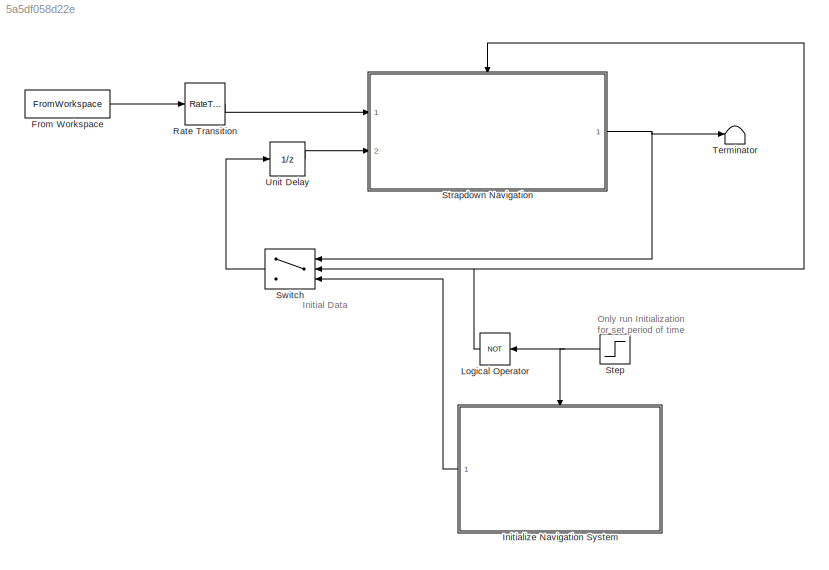
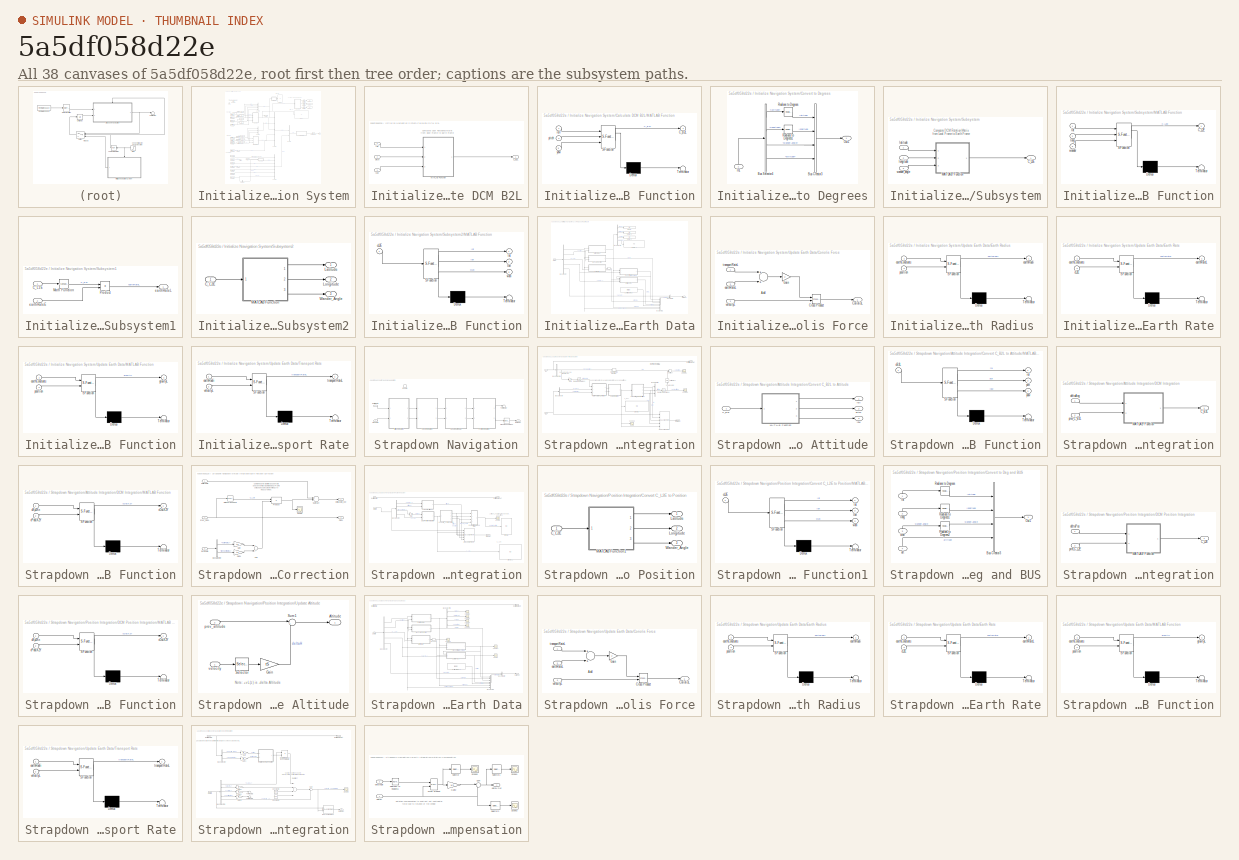
[diagram: thumbnail index - all 38 canvases of the model, root first then tree order]
MODEL slx_5a5df058d22e
KIND model
CONFIG AbsTol = auto
CONFIG FixedStep = auto
CONFIG InitFcn = InitNav;\ndtSensor = inertialData_ts.angular_rate.Time(2)-inertialData_ts.angular_rate.Time(1);\n
CONFIG MaxStep = auto
CONFIG MinStep = auto
CONFIG PreLoadFcn = load INSdata.mat\n\n
CONFIG RelTol = 1e-3
CONFIG SampleTimeConstraint = Unconstrained
CONFIG Solver = FixedStepDiscrete
CONFIG SolverMode = Auto
CONFIG SolverName = FixedStepDiscrete
CONFIG StartTime = 0.0
CONFIG StopTime = 100
BLOCK [FromWorkspace] From Workspace
  OutDataTypeStr = Bus: BInertialData
  OutputAfterFinalValue = Holding final value
  SampleTime = 0
  VariableName = inertialData_ts
  ZeroCross = on
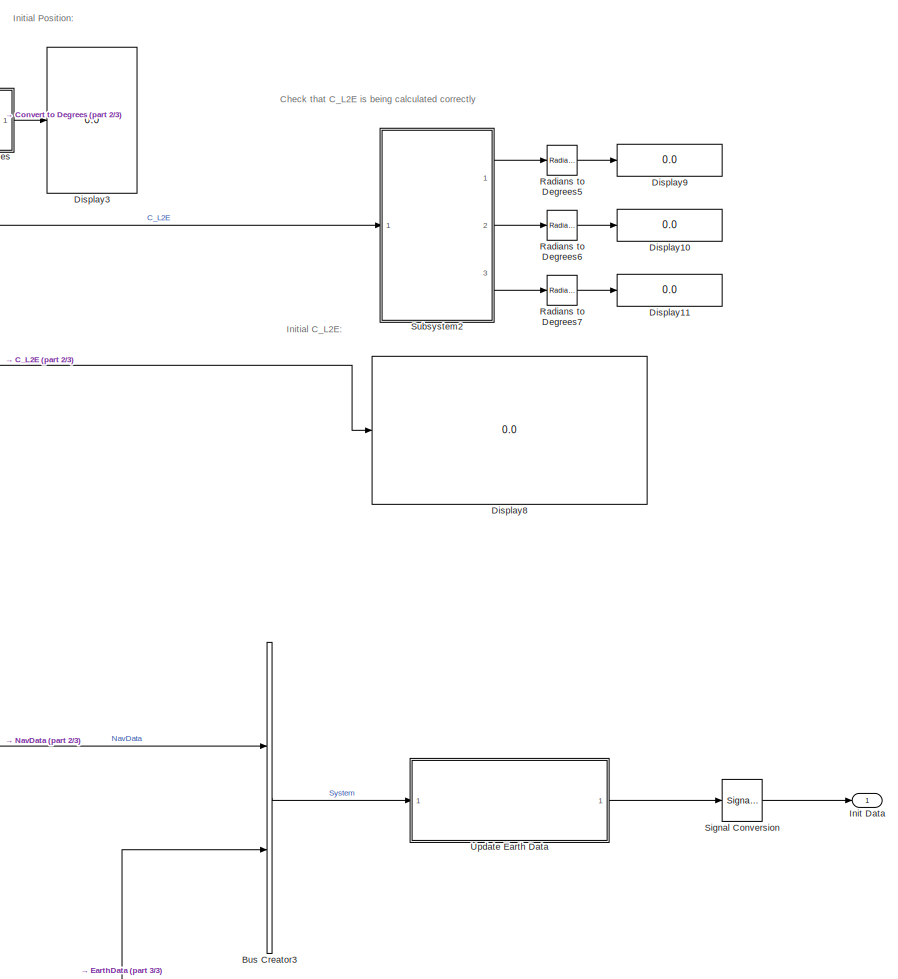
[diagram: Initialize Navigation System - part 1/3, top right region]
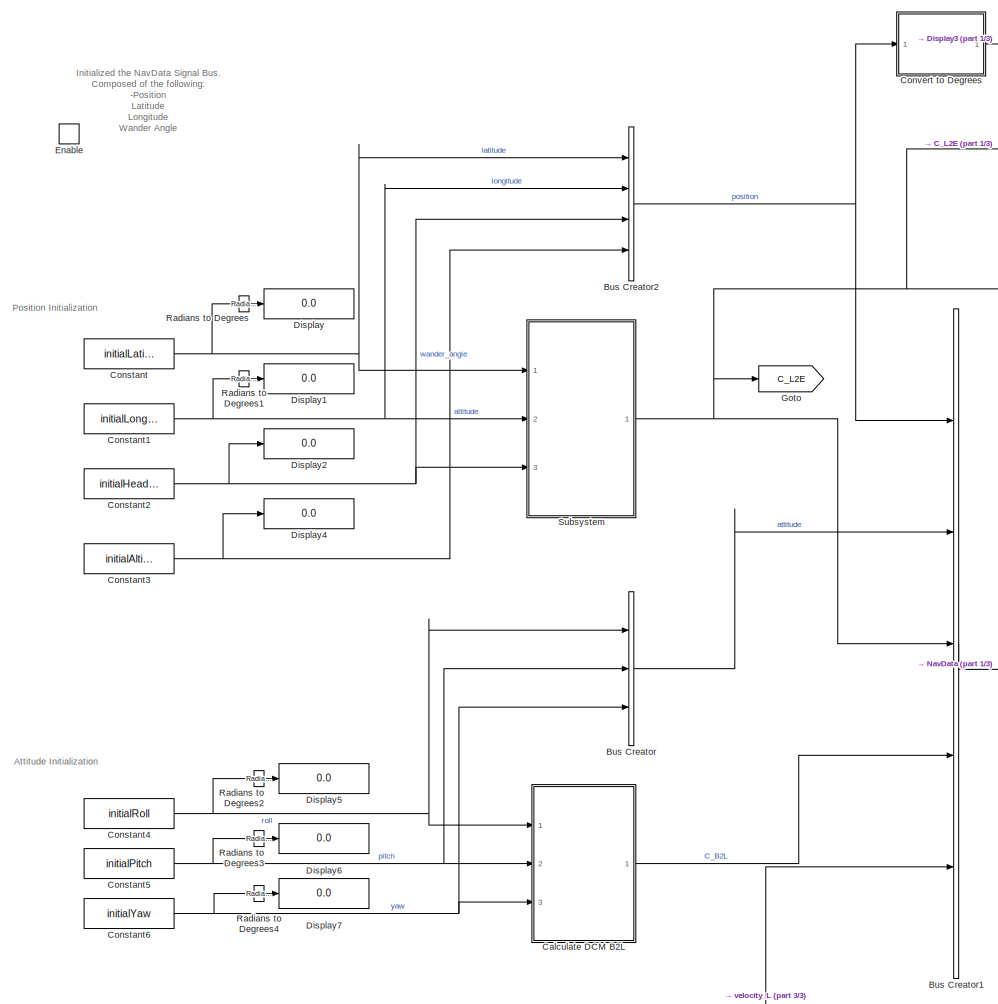
[diagram: Initialize Navigation System - part 2/3, middle left region]
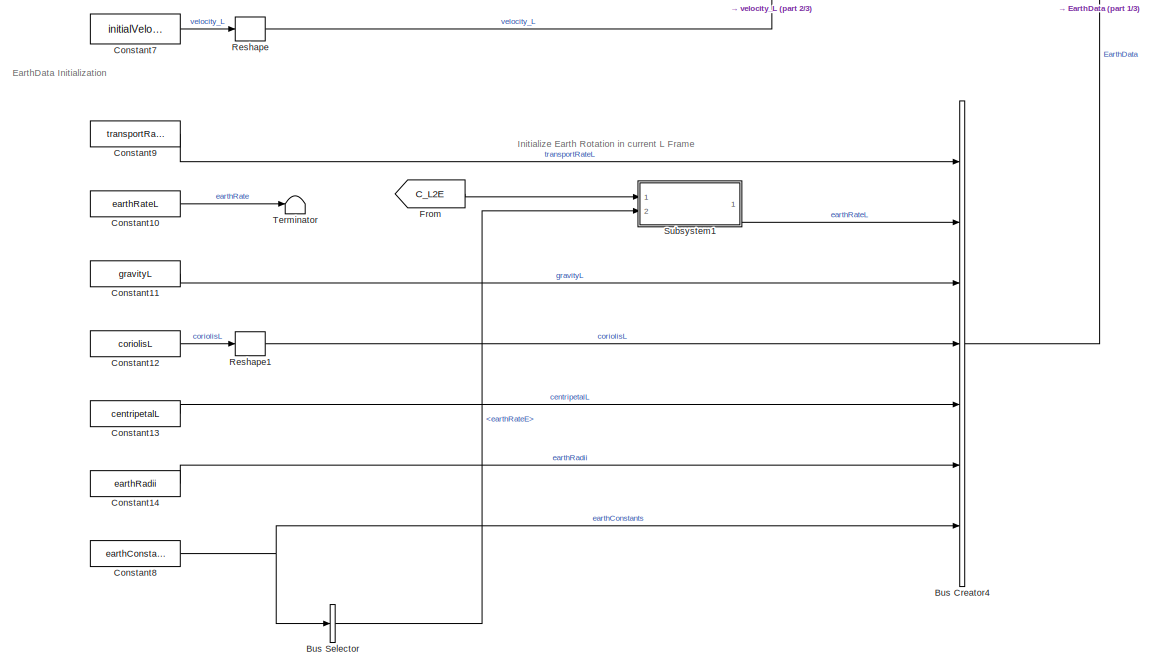
[diagram: Initialize Navigation System - part 3/3, bottom left region]
BLOCK [SubSystem] Initialize Navigation System
  Ports = [0, 1, 1]
  RequestExecContextInheritance = off
  TreatAsAtomicUnit = on
BLOCK [BusCreator] Initialize Navigation System/Bus Creator
  DisplayOption = bar
  Inputs = 3
  OutDataTypeStr = Bus: BAttitude
  Ports = [3, 1]
BLOCK [BusCreator] Initialize Navigation System/Bus Creator1
  DisplayOption = bar
  Inputs = 'position','attitude','C_L2E','C_B2L','velocity_L'
  OutDataTypeStr = Bus: BNavData
  Ports = [5, 1]
BLOCK [BusCreator] Initialize Navigation System/Bus Creator2
  DisplayOption = bar
  OutDataTypeStr = Bus: BPosition
  Ports = [4, 1]
BLOCK [BusCreator] Initialize Navigation System/Bus Creator3
  DisplayOption = bar
  Inputs = 'NavData','EarthData'
  Ports = [2, 1]
BLOCK [BusCreator] Initialize Navigation System/Bus Creator4
  DisplayOption = bar
  Inputs = 7
  Ports = [7, 1]
BLOCK [BusSelector] Initialize Navigation System/Bus Selector
  OutputSignals = earthRateE
  Ports = [1, 1]
BLOCK [SubSystem] Initialize Navigation System/Calculate DCM B2L
  Ports = [3, 1]
  RequestExecContextInheritance = off
BLOCK [Outport] Initialize Navigation System/Calculate DCM B2L/C_B2L
  IconDisplay = Port number
BLOCK [SubSystem] Initialize Navigation System/Calculate DCM B2L/MATLAB Function
  ErrorFcn = Stateflow.Translate.translate
  PermitHierarchicalResolution = ExplicitOnly
  Ports = [3, 1]
  RequestExecContextInheritance = off
  SFBlockType = MATLAB Function
  TreatAsAtomicUnit = on
BLOCK [Demux] Initialize Navigation System/Calculate DCM B2L/MATLAB Function/ Demux 
  Outputs = 1
  Ports = [1, 1]
BLOCK [S-Function] Initialize Navigation System/Calculate DCM B2L/MATLAB Function/ SFunction 
  FunctionName = sf_sfun
  PortCounts = [3 2]
  Ports = [3, 2]
  Tag = Stateflow S-Function basicINS 2
BLOCK [Terminator] Initialize Navigation System/Calculate DCM B2L/MATLAB Function/ Terminator 
BLOCK [Outport] Initialize Navigation System/Calculate DCM B2L/MATLAB Function/C_B2L
  IconDisplay = Port number
BLOCK [Inport] Initialize Navigation System/Calculate DCM B2L/MATLAB Function/pitch
  IconDisplay = Port number
  Port = 2
BLOCK [Inport] Initialize Navigation System/Calculate DCM B2L/MATLAB Function/roll
  IconDisplay = Port number
BLOCK [Inport] Initialize Navigation System/Calculate DCM B2L/MATLAB Function/yaw
  IconDisplay = Port number
  Port = 3
BLOCK [Inport] Initialize Navigation System/Calculate DCM B2L/pitch
  IconDisplay = Port number
  Port = 2
BLOCK [Inport] Initialize Navigation System/Calculate DCM B2L/roll
  IconDisplay = Port number
BLOCK [Inport] Initialize Navigation System/Calculate DCM B2L/yaw
  IconDisplay = Port number
  Port = 3
BLOCK [Constant] Initialize Navigation System/Constant
  Value = initialLatitude
BLOCK [Constant] Initialize Navigation System/Constant1
  Value = initialLongitude
BLOCK [Constant] Initialize Navigation System/Constant10
  Value = earthRateL
BLOCK [Constant] Initialize Navigation System/Constant11
  Value = gravityL
BLOCK [Constant] Initialize Navigation System/Constant12
  Value = coriolisL
BLOCK [Constant] Initialize Navigation System/Constant13
  Value = centripetalL
BLOCK [Constant] Initialize Navigation System/Constant14
  OutDataTypeStr = Bus: BEarthRadii
  Value = earthRadii
BLOCK [Constant] Initialize Navigation System/Constant2
  Value = initialHeading
BLOCK [Constant] Initialize Navigation System/Constant3
  Value = initialAltitude
BLOCK [Constant] Initialize Navigation System/Constant4
  Value = initialRoll
BLOCK [Constant] Initialize Navigation System/Constant5
  Value = initialPitch
BLOCK [Constant] Initialize Navigation System/Constant6
  Value = initialYaw
BLOCK [Constant] Initialize Navigation System/Constant7
  Value = initialVelocityL
BLOCK [Constant] Initialize Navigation System/Constant8
  OutDataTypeStr = Bus: BEarthConstants
  Value = earthConstants
BLOCK [Constant] Initialize Navigation System/Constant9
  Value = transportRateL
BLOCK [SubSystem] Initialize Navigation System/Convert to Degrees
  Ports = [1, 1]
  RequestExecContextInheritance = off
BLOCK [BusCreator] Initialize Navigation System/Convert to Degrees/Bus Creator3
  DisplayOption = bar
  OutDataTypeStr = Bus: BPosition
  Ports = [4, 1]
BLOCK [BusSelector] Initialize Navigation System/Convert to Degrees/Bus Selector4
  OutputSignals = latitude,longitude,wander_angle,altitude
  Ports = [1, 4]
BLOCK [Inport] Initialize Navigation System/Convert to Degrees/In1
  IconDisplay = Port number
BLOCK [Outport] Initialize Navigation System/Convert to Degrees/Out1
  IconDisplay = Port number
BLOCK [Reference] Initialize Navigation System/Convert to Degrees/Radians to Degrees  REF=simulink_extras/Transformations/Radians
to Degrees
  Ports = [1, 1]
  SourceBlock = simulink_extras/Transformations/Radians\nto Degrees
  SourceType = RadiansToDegrees
BLOCK [Reference] Initialize Navigation System/Convert to Degrees/Radians to Degrees1  REF=simulink_extras/Transformations/Radians
to Degrees
  Ports = [1, 1]
  SourceBlock = simulink_extras/Transformations/Radians\nto Degrees
  SourceType = RadiansToDegrees
BLOCK [Display] Initialize Navigation System/Display
  Decimation = 1
  Ports = [1]
BLOCK [Display] Initialize Navigation System/Display1
  Decimation = 1
  Ports = [1]
BLOCK [Display] Initialize Navigation System/Display10
  Decimation = 1
  Ports = [1]
BLOCK [Display] Initialize Navigation System/Display11
  Decimation = 1
  Ports = [1]
BLOCK [Display] Initialize Navigation System/Display2
  Decimation = 1
  Ports = [1]
BLOCK [Display] Initialize Navigation System/Display3
  Decimation = 1
  Ports = [1]
BLOCK [Display] Initialize Navigation System/Display4
  Decimation = 1
  Ports = [1]
BLOCK [Display] Initialize Navigation System/Display5
  Decimation = 1
  Ports = [1]
BLOCK [Display] Initialize Navigation System/Display6
  Decimation = 1
  Ports = [1]
BLOCK [Display] Initialize Navigation System/Display7
  Decimation = 1
  Ports = [1]
BLOCK [Display] Initialize Navigation System/Display8
  Decimation = 1
  Ports = [1]
BLOCK [Display] Initialize Navigation System/Display9
  Decimation = 1
  Ports = [1]
BLOCK [EnablePort] Initialize Navigation System/Enable
  Ports = []
BLOCK [From] Initialize Navigation System/From
  GotoTag = C_L2E
BLOCK [Goto] Initialize Navigation System/Goto
  GotoTag = C_L2E
BLOCK [Outport] Initialize Navigation System/Init Data
  IconDisplay = Port number
  OutDataTypeStr = Bus: BSystem
BLOCK [Reference] Initialize Navigation System/Radians to Degrees  REF=simulink_extras/Transformations/Radians
to Degrees
  Ports = [1, 1]
  SourceBlock = simulink_extras/Transformations/Radians\nto Degrees
  SourceType = RadiansToDegrees
BLOCK [Reference] Initialize Navigation System/Radians to Degrees1  REF=simulink_extras/Transformations/Radians
to Degrees
  Ports = [1, 1]
  SourceBlock = simulink_extras/Transformations/Radians\nto Degrees
  SourceType = RadiansToDegrees
BLOCK [Reference] Initialize Navigation System/Radians to Degrees2  REF=simulink_extras/Transformations/Radians
to Degrees
  Ports = [1, 1]
  SourceBlock = simulink_extras/Transformations/Radians\nto Degrees
  SourceType = RadiansToDegrees
BLOCK [Reference] Initialize Navigation System/Radians to Degrees3  REF=simulink_extras/Transformations/Radians
to Degrees
  Ports = [1, 1]
  SourceBlock = simulink_extras/Transformations/Radians\nto Degrees
  SourceType = RadiansToDegrees
BLOCK [Reference] Initialize Navigation System/Radians to Degrees4  REF=simulink_extras/Transformations/Radians
to Degrees
  Ports = [1, 1]
  SourceBlock = simulink_extras/Transformations/Radians\nto Degrees
  SourceType = RadiansToDegrees
BLOCK [Reference] Initialize Navigation System/Radians to Degrees5  REF=simulink_extras/Transformations/Radians
to Degrees
  Ports = [1, 1]
  SourceBlock = simulink_extras/Transformations/Radians\nto Degrees
  SourceType = RadiansToDegrees
BLOCK [Reference] Initialize Navigation System/Radians to Degrees6  REF=simulink_extras/Transformations/Radians
to Degrees
  Ports = [1, 1]
  SourceBlock = simulink_extras/Transformations/Radians\nto Degrees
  SourceType = RadiansToDegrees
BLOCK [Reference] Initialize Navigation System/Radians to Degrees7  REF=simulink_extras/Transformations/Radians
to Degrees
  Ports = [1, 1]
  SourceBlock = simulink_extras/Transformations/Radians\nto Degrees
  SourceType = RadiansToDegrees
BLOCK [Reshape] Initialize Navigation System/Reshape
  OutputDimensionality = Column vector (2-D)
  Ports = [1, 1]
BLOCK [Reshape] Initialize Navigation System/Reshape1
  OutputDimensionality = Column vector (2-D)
  Ports = [1, 1]
BLOCK [SignalConversion] Initialize Navigation System/Signal Conversion
BLOCK [SubSystem] Initialize Navigation System/Subsystem
  Ports = [3, 1]
  RequestExecContextInheritance = off
BLOCK [Outport] Initialize Navigation System/Subsystem/C_L2E
  IconDisplay = Port number
BLOCK [SubSystem] Initialize Navigation System/Subsystem/MATLAB Function
  ErrorFcn = Stateflow.Translate.translate
  PermitHierarchicalResolution = ExplicitOnly
  Ports = [3, 1]
  RequestExecContextInheritance = off
  SFBlockType = MATLAB Function
  TreatAsAtomicUnit = on
BLOCK [Demux] Initialize Navigation System/Subsystem/MATLAB Function/ Demux 
  Outputs = 1
  Ports = [1, 1]
BLOCK [S-Function] Initialize Navigation System/Subsystem/MATLAB Function/ SFunction 
  FunctionName = sf_sfun
  PortCounts = [3 2]
  Ports = [3, 2]
  Tag = Stateflow S-Function basicINS 1
BLOCK [Terminator] Initialize Navigation System/Subsystem/MATLAB Function/ Terminator 
BLOCK [Outport] Initialize Navigation System/Subsystem/MATLAB Function/C_L2E
  IconDisplay = Port number
BLOCK [Inport] Initialize Navigation System/Subsystem/MATLAB Function/lat
  IconDisplay = Port number
BLOCK [Inport] Initialize Navigation System/Subsystem/MATLAB Function/long
  IconDisplay = Port number
  Port = 2
BLOCK [Inport] Initialize Navigation System/Subsystem/MATLAB Function/wander
  IconDisplay = Port number
  Port = 3
BLOCK [Inport] Initialize Navigation System/Subsystem/latitude
  IconDisplay = Port number
BLOCK [Inport] Initialize Navigation System/Subsystem/longitude
  IconDisplay = Port number
  Port = 2
BLOCK [Inport] Initialize Navigation System/Subsystem/wander_angle
  IconDisplay = Port number
  Port = 3
BLOCK [SubSystem] Initialize Navigation System/Subsystem1
  Ports = [2, 1]
  RequestExecContextInheritance = off
BLOCK [Inport] Initialize Navigation System/Subsystem1/C_L2E
  IconDisplay = Port number
BLOCK [Math] Initialize Navigation System/Subsystem1/Math Function
  Operator = transpose
  Ports = [1, 1]
BLOCK [Product] Initialize Navigation System/Subsystem1/Product
  InputSameDT = off
  Multiplication = Matrix(*)
  OutDataTypeStr = Inherit: Inherit via internal rule
  Ports = [2, 1]
  RndMeth = Floor
  SaturateOnIntegerOverflow = off
BLOCK [Inport] Initialize Navigation System/Subsystem1/earthRateE
  IconDisplay = Port number
  Port = 2
BLOCK [Outport] Initialize Navigation System/Subsystem1/earthRateL
  IconDisplay = Port number
BLOCK [SubSystem] Initialize Navigation System/Subsystem2
  Ports = [1, 3]
  RequestExecContextInheritance = off
BLOCK [Inport] Initialize Navigation System/Subsystem2/C_L2E
  IconDisplay = Port number
BLOCK [Outport] Initialize Navigation System/Subsystem2/Latitude
  IconDisplay = Port number
BLOCK [Outport] Initialize Navigation System/Subsystem2/Longitude
  IconDisplay = Port number
  Port = 2
BLOCK [SubSystem] Initialize Navigation System/Subsystem2/MATLAB Function
  ErrorFcn = Stateflow.Translate.translate
  PermitHierarchicalResolution = ExplicitOnly
  Ports = [1, 3]
  RequestExecContextInheritance = off
  SFBlockType = MATLAB Function
  TreatAsAtomicUnit = on
BLOCK [Demux] Initialize Navigation System/Subsystem2/MATLAB Function/ Demux 
  Outputs = 1
  Ports = [1, 1]
BLOCK [S-Function] Initialize Navigation System/Subsystem2/MATLAB Function/ SFunction 
  FunctionName = sf_sfun
  PortCounts = [1 4]
  Ports = [1, 4]
  Tag = Stateflow S-Function basicINS 15
BLOCK [Terminator] Initialize Navigation System/Subsystem2/MATLAB Function/ Terminator 
BLOCK [Inport] Initialize Navigation System/Subsystem2/MATLAB Function/cL2E
  IconDisplay = Port number
BLOCK [Outport] Initialize Navigation System/Subsystem2/MATLAB Function/lat
  IconDisplay = Port number
BLOCK [Outport] Initialize Navigation System/Subsystem2/MATLAB Function/lon
  IconDisplay = Port number
  Port = 2
BLOCK [Outport] Initialize Navigation System/Subsystem2/MATLAB Function/wan
  IconDisplay = Port number
  Port = 3
BLOCK [Outport] Initialize Navigation System/Subsystem2/Wander_Angle
  IconDisplay = Port number
  Port = 3
BLOCK [Terminator] Initialize Navigation System/Terminator
BLOCK [SubSystem] Initialize Navigation System/Update Earth Data
  Ports = [1, 1]
  RequestExecContextInheritance = off
BLOCK [BusCreator] Initialize Navigation System/Update Earth Data/Bus Creator1
  DisplayOption = bar
  Inputs = 7
  OutDataTypeStr = Bus: BEarthData
  Ports = [7, 1]
BLOCK [BusCreator] Initialize Navigation System/Update Earth Data/Bus Creator2
  DisplayOption = bar
  Inputs = 2
  OutDataTypeStr = Bus: BSystem
  Ports = [2, 1]
BLOCK [BusSelector] Initialize Navigation System/Update Earth Data/Bus Selector
  OutputSignals = EarthData.earthConstants,NavData.position,NavData.C_L2E,NavData.velocity_L,NavData
  Ports = [1, 5]
BLOCK [BusSelector] Initialize Navigation System/Update Earth Data/Bus Selector1
  OutputSignals = radius,meridional,normal,curvatureL
  Ports = [1, 4]
BLOCK [Constant] Initialize Navigation System/Update Earth Data/Centripetal Froce
  Value = [0;0;0]
BLOCK [SubSystem] Initialize Navigation System/Update Earth Data/Coriolis Force
  Ports = [3, 1]
  RequestExecContextInheritance = off
BLOCK [Sum] Initialize Navigation System/Update Earth Data/Coriolis Force/Add
  InputSameDT = off
  OutDataTypeStr = Inherit: Inherit via internal rule
  Ports = [2, 1]
  SaturateOnIntegerOverflow = off
BLOCK [Outport] Initialize Navigation System/Update Earth Data/Coriolis Force/CoriolisL
  IconDisplay = Port number
BLOCK [Reference] Initialize Navigation System/Update Earth Data/Coriolis Force/Cross Product  REF=vrlib/Utilities/Cross Product
  Ports = [2, 1]
  SourceBlock = vrlib/Utilities/Cross Product
  SourceType = Cross Product
BLOCK [Gain] Initialize Navigation System/Update Earth Data/Coriolis Force/Gain
  Gain = 2
  OutDataTypeStr = Inherit: Inherit via internal rule
  ParamDataTypeStr = Inherit: Inherit via internal rule
  SaturateOnIntegerOverflow = off
BLOCK [Inport] Initialize Navigation System/Update Earth Data/Coriolis Force/earthRateL
  IconDisplay = Port number
  Port = 2
BLOCK [Inport] Initialize Navigation System/Update Earth Data/Coriolis Force/transportRateL
  IconDisplay = Port number
BLOCK [Inport] Initialize Navigation System/Update Earth Data/Coriolis Force/velocityL
  IconDisplay = Port number
  Port = 3
BLOCK [Inport] Initialize Navigation System/Update Earth Data/Data In
  IconDisplay = Port number
BLOCK [Outport] Initialize Navigation System/Update Earth Data/Data Out
  IconDisplay = Port number
  OutDataTypeStr = Bus: BSystem
BLOCK [Display] Initialize Navigation System/Update Earth Data/Display
  Decimation = 1
  Ports = [1]
BLOCK [Display] Initialize Navigation System/Update Earth Data/Display1
  Decimation = 1
  Ports = [1]
BLOCK [Display] Initialize Navigation System/Update Earth Data/Display2
  Decimation = 1
  Ports = [1]
BLOCK [Display] Initialize Navigation System/Update Earth Data/Display3
  Decimation = 1
  Ports = [1]
BLOCK [SubSystem] Initialize Navigation System/Update Earth Data/Earth Radius 
  ErrorFcn = Stateflow.Translate.translate
  PermitHierarchicalResolution = ExplicitOnly
  Ports = [2, 1]
  RequestExecContextInheritance = off
  SFBlockType = MATLAB Function
  TreatAsAtomicUnit = on
BLOCK [Demux] Initialize Navigation System/Update Earth Data/Earth Radius / Demux 
  Outputs = 1
  Ports = [1, 1]
BLOCK [S-Function] Initialize Navigation System/Update Earth Data/Earth Radius / SFunction 
  FunctionName = sf_sfun
  PortCounts = [2 2]
  Ports = [2, 2]
  Tag = Stateflow S-Function basicINS 7
BLOCK [Terminator] Initialize Navigation System/Update Earth Data/Earth Radius / Terminator 
BLOCK [Inport] Initialize Navigation System/Update Earth Data/Earth Radius /earthConstants
  IconDisplay = Port number
BLOCK [Outport] Initialize Navigation System/Update Earth Data/Earth Radius /earthRadii
  IconDisplay = Port number
BLOCK [Inport] Initialize Navigation System/Update Earth Data/Earth Radius /position
  IconDisplay = Port number
  Port = 2
BLOCK [SubSystem] Initialize Navigation System/Update Earth Data/Earth Rate
  ErrorFcn = Stateflow.Translate.translate
  PermitHierarchicalResolution = ExplicitOnly
  Ports = [2, 1]
  RequestExecContextInheritance = off
  SFBlockType = MATLAB Function
  TreatAsAtomicUnit = on
BLOCK [Demux] Initialize Navigation System/Update Earth Data/Earth Rate/ Demux 
  Outputs = 1
  Ports = [1, 1]
BLOCK [S-Function] Initialize Navigation System/Update Earth Data/Earth Rate/ SFunction 
  FunctionName = sf_sfun
  PortCounts = [2 2]
  Ports = [2, 2]
  Tag = Stateflow S-Function basicINS 8
BLOCK [Terminator] Initialize Navigation System/Update Earth Data/Earth Rate/ Terminator 
BLOCK [Inport] Initialize Navigation System/Update Earth Data/Earth Rate/cL2E
  IconDisplay = Port number
  Port = 2
BLOCK [Inport] Initialize Navigation System/Update Earth Data/Earth Rate/earthConstants
  IconDisplay = Port number
BLOCK [Outport] Initialize Navigation System/Update Earth Data/Earth Rate/earthRateL
  IconDisplay = Port number
BLOCK [SubSystem] Initialize Navigation System/Update Earth Data/MATLAB Function
  ErrorFcn = Stateflow.Translate.translate
  PermitHierarchicalResolution = ExplicitOnly
  Ports = [2, 1]
  RequestExecContextInheritance = off
  SFBlockType = MATLAB Function
  TreatAsAtomicUnit = on
BLOCK [Demux] Initialize Navigation System/Update Earth Data/MATLAB Function/ Demux 
  Outputs = 1
  Ports = [1, 1]
BLOCK [S-Function] Initialize Navigation System/Update Earth Data/MATLAB Function/ SFunction 
  FunctionName = sf_sfun
  PortCounts = [2 2]
  Ports = [2, 2]
  Tag = Stateflow S-Function basicINS 9
BLOCK [Terminator] Initialize Navigation System/Update Earth Data/MATLAB Function/ Terminator 
BLOCK [Inport] Initialize Navigation System/Update Earth Data/MATLAB Function/earthConstants
  IconDisplay = Port number
BLOCK [Outport] Initialize Navigation System/Update Earth Data/MATLAB Function/gravityL
  IconDisplay = Port number
BLOCK [Inport] Initialize Navigation System/Update Earth Data/MATLAB Function/position
  IconDisplay = Port number
  Port = 2
BLOCK [Reshape] Initialize Navigation System/Update Earth Data/Reshape
  OutputDimensionality = Column vector (2-D)
  Ports = [1, 1]
BLOCK [SubSystem] Initialize Navigation System/Update Earth Data/Transport Rate
  ErrorFcn = Stateflow.Translate.translate
  PermitHierarchicalResolution = ExplicitOnly
  Ports = [2, 1]
  RequestExecContextInheritance = off
  SFBlockType = MATLAB Function
  TreatAsAtomicUnit = on
BLOCK [Demux] Initialize Navigation System/Update Earth Data/Transport Rate/ Demux 
  Outputs = 1
  Ports = [1, 1]
BLOCK [S-Function] Initialize Navigation System/Update Earth Data/Transport Rate/ SFunction 
  FunctionName = sf_sfun
  PortCounts = [2 2]
  Ports = [2, 2]
  Tag = Stateflow S-Function basicINS 10
BLOCK [Terminator] Initialize Navigation System/Update Earth Data/Transport Rate/ Terminator 
BLOCK [Inport] Initialize Navigation System/Update Earth Data/Transport Rate/earthRadii
  IconDisplay = Port number
BLOCK [Outport] Initialize Navigation System/Update Earth Data/Transport Rate/transportRateL
  IconDisplay = Port number
BLOCK [Inport] Initialize Navigation System/Update Earth Data/Transport Rate/velocityL
  IconDisplay = Port number
  Port = 2
BLOCK [Logic] Logical Operator
  AllPortsSameDT = off
  Operator = NOT
  OutDataTypeStr = boolean
  Ports = [1, 1]
BLOCK [RateTransition] Rate Transition
  OutPortSampleTime = tS
BLOCK [Step] Step
  After = 0
  Before = 1
  SampleTime = tS
  Time = t_initialize
BLOCK [SubSystem] Strapdown Navigation
  Ports = [2, 1, 1]
  RequestExecContextInheritance = off
BLOCK [SubSystem] Strapdown Navigation/Attitude Integration
  Ports = [2, 2]
  RequestExecContextInheritance = off
BLOCK [BusAssignment] Strapdown Navigation/Attitude Integration/Bus Assignment
  AssignedSignals = NavData.attitude.roll,NavData.attitude.pitch,NavData.attitude.yaw,NavData.C_B2L
  Ports = [5, 1]
BLOCK [BusCreator] Strapdown Navigation/Attitude Integration/Bus Creator1
  DisplayOption = bar
  Inputs = 3
  Ports = [3, 1]
BLOCK [BusSelector] Strapdown Navigation/Attitude Integration/Bus Selector
  OutputSignals = NavData.C_B2L,EarthData
  Ports = [1, 2]
BLOCK [BusSelector] Strapdown Navigation/Attitude Integration/Bus Selector1
  OutputSignals = angular_rate
  Ports = [1, 1]
BLOCK [SubSystem] Strapdown Navigation/Attitude Integration/Convert C_B2L to Attitude
  Ports = [1, 3]
  RequestExecContextInheritance = off
BLOCK [Inport] Strapdown Navigation/Attitude Integration/Convert C_B2L to Attitude/C_B2L
  IconDisplay = Port number
BLOCK [SubSystem] Strapdown Navigation/Attitude Integration/Convert C_B2L to Attitude/MATLAB Function
  ErrorFcn = Stateflow.Translate.translate
  PermitHierarchicalResolution = ExplicitOnly
  Ports = [1, 3]
  RequestExecContextInheritance = off
  SFBlockType = MATLAB Function
  TreatAsAtomicUnit = on
BLOCK [Demux] Strapdown Navigation/Attitude Integration/Convert C_B2L to Attitude/MATLAB Function/ Demux 
  Outputs = 1
  Ports = [1, 1]
BLOCK [S-Function] Strapdown Navigation/Attitude Integration/Convert C_B2L to Attitude/MATLAB Function/ SFunction 
  FunctionName = sf_sfun
  PortCounts = [1 4]
  Ports = [1, 4]
  Tag = Stateflow S-Function basicINS 14
BLOCK [Terminator] Strapdown Navigation/Attitude Integration/Convert C_B2L to Attitude/MATLAB Function/ Terminator 
BLOCK [Inport] Strapdown Navigation/Attitude Integration/Convert C_B2L to Attitude/MATLAB Function/cB2L
  IconDisplay = Port number
BLOCK [Outport] Strapdown Navigation/Attitude Integration/Convert C_B2L to Attitude/MATLAB Function/pch
  IconDisplay = Port number
  Port = 2
BLOCK [Outport] Strapdown Navigation/Attitude Integration/Convert C_B2L to Attitude/MATLAB Function/rol
  IconDisplay = Port number
BLOCK [Outport] Strapdown Navigation/Attitude Integration/Convert C_B2L to Attitude/MATLAB Function/yaw
  IconDisplay = Port number
  Port = 3
BLOCK [Outport] Strapdown Navigation/Attitude Integration/Convert C_B2L to Attitude/pitch
  IconDisplay = Port number
  Port = 2
BLOCK [Outport] Strapdown Navigation/Attitude Integration/Convert C_B2L to Attitude/roll
  IconDisplay = Port number
BLOCK [Outport] Strapdown Navigation/Attitude Integration/Convert C_B2L to Attitude/yaw
  IconDisplay = Port number
  Port = 3
BLOCK [SubSystem] Strapdown Navigation/Attitude Integration/DCM Integration
  Ports = [2, 1]
  RequestExecContextInheritance = off
BLOCK [Outport] Strapdown Navigation/Attitude Integration/DCM Integration/C_B2L
  IconDisplay = Port number
BLOCK [SubSystem] Strapdown Navigation/Attitude Integration/DCM Integration/MATLAB Function
  ErrorFcn = Stateflow.Translate.translate
  PermitHierarchicalResolution = ExplicitOnly
  Ports = [2, 1]
  RequestExecContextInheritance = off
  SFBlockType = MATLAB Function
  TreatAsAtomicUnit = on
BLOCK [Demux] Strapdown Navigation/Attitude Integration/DCM Integration/MATLAB Function/ Demux 
  Outputs = 1
  Ports = [1, 1]
BLOCK [S-Function] Strapdown Navigation/Attitude Integration/DCM Integration/MATLAB Function/ SFunction 
  FunctionName = sf_sfun
  PortCounts = [2 2]
  Ports = [2, 2]
  Tag = Stateflow S-Function basicINS 13
BLOCK [Terminator] Strapdown Navigation/Attitude Integration/DCM Integration/MATLAB Function/ Terminator 
BLOCK [Outport] Strapdown Navigation/Attitude Integration/DCM Integration/MATLAB Function/cOutX2Y
  IconDisplay = Port number
BLOCK [Inport] Strapdown Navigation/Attitude Integration/DCM Integration/MATLAB Function/cPastX2Y
  IconDisplay = Port number
  Port = 2
BLOCK [Inport] Strapdown Navigation/Attitude Integration/DCM Integration/MATLAB Function/dXp2Xn
  IconDisplay = Port number
BLOCK [Inport] Strapdown Navigation/Attitude Integration/DCM Integration/deltaAng
  IconDisplay = Port number
BLOCK [Inport] Strapdown Navigation/Attitude Integration/DCM Integration/prev_C_B2L
  IconDisplay = Port number
  Port = 2
BLOCK [Outport] Strapdown Navigation/Attitude Integration/Data Out
  IconDisplay = Port number
  Port = 2
BLOCK [Reference] Strapdown Navigation/Attitude Integration/Degrees to Radians  REF=simulink_extras/Transformations/Degrees to
Radians
  Ports = [1, 1]
  SourceBlock = simulink_extras/Transformations/Degrees to\nRadians
  SourceType = DegreesToRadians
BLOCK [DiscreteIntegrator] Strapdown Navigation/Attitude Integration/Discrete-Time Integrator
  Ports = [1, 1]
  SampleTime = tS
BLOCK [Display] Strapdown Navigation/Attitude Integration/Display
  Decimation = 1
  Ports = [1]
BLOCK [SubSystem] Strapdown Navigation/Attitude Integration/Earth Rotation Correction
  Ports = [3, 2]
  RequestExecContextInheritance = off
BLOCK [Sum] Strapdown Navigation/Attitude Integration/Earth Rotation Correction/Add
  InputSameDT = off
  OutDataTypeStr = Inherit: Inherit via internal rule
  Ports = [2, 1]
  SaturateOnIntegerOverflow = off
BLOCK [BusSelector] Strapdown Navigation/Attitude Integration/Earth Rotation Correction/Bus Selector
  OutputSignals = earthRateL,transportRateL
  Ports = [1, 2]
BLOCK [Outport] Strapdown Navigation/Attitude Integration/Earth Rotation Correction/CB2L
  IconDisplay = Port number
  Port = 2
BLOCK [Inport] Strapdown Navigation/Attitude Integration/Earth Rotation Correction/EarthData
  IconDisplay = Port number
  Port = 3
BLOCK [Gain] Strapdown Navigation/Attitude Integration/Earth Rotation Correction/Gain
  Gain = tS
  OutDataTypeStr = Inherit: Inherit via internal rule
  ParamDataTypeStr = Inherit: Inherit via internal rule
  SaturateOnIntegerOverflow = off
BLOCK [Gain] Strapdown Navigation/Attitude Integration/Earth Rotation Correction/Gain1
  Gain = tS
  OutDataTypeStr = Inherit: Inherit via internal rule
  ParamDataTypeStr = Inherit: Inherit via internal rule
  SaturateOnIntegerOverflow = off
BLOCK [Math] Strapdown Navigation/Attitude Integration/Earth Rotation Correction/Matrix Transpose
  Operator = transpose
  Ports = [1, 1]
BLOCK [Product] Strapdown Navigation/Attitude Integration/Earth Rotation Correction/Product
  InputSameDT = off
  Multiplication = Matrix(*)
  OutDataTypeStr = Inherit: Inherit via internal rule
  Ports = [2, 1]
  RndMeth = Floor
  SaturateOnIntegerOverflow = off
BLOCK [Scope] Strapdown Navigation/Attitude Integration/Earth Rotation Correction/Scope
  DataFormat = StructureWithTime
  Floating = off
  LimitDataPoints = off
  NumInputPorts = 1
  Ports = [1]
  SampleTime = 0
  SaveName = ScopeData3
  YMax = 7e-08
  YMin = -5e-08
BLOCK [Sum] Strapdown Navigation/Attitude Integration/Earth Rotation Correction/Subtract
  InputSameDT = off
  Inputs = +-
  OutDataTypeStr = Inherit: Inherit via internal rule
  Ports = [2, 1]
  SaturateOnIntegerOverflow = off
BLOCK [Inport] Strapdown Navigation/Attitude Integration/Earth Rotation Correction/deltaAngle
  IconDisplay = Port number
BLOCK [Outport] Strapdown Navigation/Attitude Integration/Earth Rotation Correction/deltaAngle_out
  IconDisplay = Port number
BLOCK [Inport] Strapdown Navigation/Attitude Integration/Earth Rotation Correction/prev_CB2L
  IconDisplay = Port number
  Port = 2
BLOCK [Gain] Strapdown Navigation/Attitude Integration/Gain
  Gain = tS
  OutDataTypeStr = Inherit: Inherit via internal rule
  ParamDataTypeStr = Inherit: Inherit via internal rule
  SaturateOnIntegerOverflow = off
BLOCK [Inport] Strapdown Navigation/Attitude Integration/In1
  IconDisplay = Port number
BLOCK [Inport] Strapdown Navigation/Attitude Integration/In2
  IconDisplay = Port number
  Port = 2
BLOCK [Outport] Strapdown Navigation/Attitude Integration/Inertial Data Out
  IconDisplay = Port number
BLOCK [Reference] Strapdown Navigation/Attitude Integration/Radians to Degrees  REF=simulink_extras/Transformations/Radians
to Degrees
  Ports = [1, 1]
  SourceBlock = simulink_extras/Transformations/Radians\nto Degrees
  SourceType = RadiansToDegrees
BLOCK [Scope] Strapdown Navigation/Attitude Integration/Scope1
  DataFormat = StructureWithTime
  Floating = off
  LimitDataPoints = off
  NumInputPorts = 1
  Ports = [1]
  SampleTime = 0
  SaveName = gyroErrors
  SaveToWorkspace = on
  ShowLegends = on
  ZoomMode = xonly
BLOCK [Scope] Strapdown Navigation/Attitude Integration/Scope2
  DataFormat = StructureWithTime
  Floating = off
  LimitDataPoints = off
  NumInputPorts = 1
  Ports = [1]
  SampleTime = 0
  SaveName = ScopeData2
  YMax = 2.5
  YMin = -0.25
  ZoomMode = yonly
BLOCK [Scope] Strapdown Navigation/Attitude Integration/Scope3
  DataFormat = StructureWithTime
  Floating = off
  NumInputPorts = 1
  Ports = [1]
  SampleTime = 0
  SaveName = ScopeData1
  ZoomMode = yonly
BLOCK [Sum] Strapdown Navigation/Attitude Integration/Subtract
  InputSameDT = off
  Inputs = +-
  OutDataTypeStr = Inherit: Inherit via internal rule
  Ports = [2, 1]
  SaturateOnIntegerOverflow = off
BLOCK [UnitDelay] Strapdown Navigation/Attitude Integration/Unit Delay1
  InputProcessing = Elements as channels (sample based)
  SampleTime = -1
BLOCK [Outport] Strapdown Navigation/DataOut
  IconDisplay = Port number
  OutDataTypeStr = Bus: BSystem
BLOCK [EnablePort] Strapdown Navigation/Enable
  Ports = []
BLOCK [SubSystem] Strapdown Navigation/Position Integration
  Ports = [2, 2]
  RequestExecContextInheritance = off
BLOCK [BusAssignment] Strapdown Navigation/Position Integration/Bus Assignment
  AssignedSignals = NavData.C_L2E,NavData.position.latitude,NavData.position.longitude,NavData.position.wander_angle,NavData.position.altitude
  Ports = [6, 1]
BLOCK [BusSelector] Strapdown Navigation/Position Integration/Bus Selector
  OutputSignals = NavData.velocity_L,NavData.position.altitude,EarthData.transportRateL,NavData.C_L2E
  Ports = [1, 4]
BLOCK [SubSystem] Strapdown Navigation/Position Integration/Convert C_L2E to Position
  Ports = [1, 3]
  RequestExecContextInheritance = off
BLOCK [Inport] Strapdown Navigation/Position Integration/Convert C_L2E to Position/C_L2E
  IconDisplay = Port number
BLOCK [Outport] Strapdown Navigation/Position Integration/Convert C_L2E to Position/Latitude
  IconDisplay = Port number
BLOCK [Outport] Strapdown Navigation/Position Integration/Convert C_L2E to Position/Longitude
  IconDisplay = Port number
  Port = 2
BLOCK [SubSystem] Strapdown Navigation/Position Integration/Convert C_L2E to Position/MATLAB Function1
  ErrorFcn = Stateflow.Translate.translate
  PermitHierarchicalResolution = ExplicitOnly
  Ports = [1, 3]
  RequestExecContextInheritance = off
  SFBlockType = MATLAB Function
  TreatAsAtomicUnit = on
BLOCK [Demux] Strapdown Navigation/Position Integration/Convert C_L2E to Position/MATLAB Function1/ Demux 
  Outputs = 1
  Ports = [1, 1]
BLOCK [S-Function] Strapdown Navigation/Position Integration/Convert C_L2E to Position/MATLAB Function1/ SFunction 
  FunctionName = sf_sfun
  PortCounts = [1 4]
  Ports = [1, 4]
  Tag = Stateflow S-Function basicINS 16
BLOCK [Terminator] Strapdown Navigation/Position Integration/Convert C_L2E to Position/MATLAB Function1/ Terminator 
BLOCK [Inport] Strapdown Navigation/Position Integration/Convert C_L2E to Position/MATLAB Function1/cL2E
  IconDisplay = Port number
BLOCK [Outport] Strapdown Navigation/Position Integration/Convert C_L2E to Position/MATLAB Function1/lat
  IconDisplay = Port number
BLOCK [Outport] Strapdown Navigation/Position Integration/Convert C_L2E to Position/MATLAB Function1/lon
  IconDisplay = Port number
  Port = 2
BLOCK [Outport] Strapdown Navigation/Position Integration/Convert C_L2E to Position/MATLAB Function1/wan
  IconDisplay = Port number
  Port = 3
BLOCK [Outport] Strapdown Navigation/Position Integration/Convert C_L2E to Position/Wander_Angle
  IconDisplay = Port number
  Port = 3
BLOCK [SubSystem] Strapdown Navigation/Position Integration/Convert to Deg and BUS
  Ports = [4, 1]
  RequestExecContextInheritance = off
BLOCK [BusCreator] Strapdown Navigation/Position Integration/Convert to Deg and BUS/Bus Creator3
  DisplayOption = bar
  OutDataTypeStr = Bus: BPosition
  Ports = [4, 1]
BLOCK [Outport] Strapdown Navigation/Position Integration/Convert to Deg and BUS/Out1
  IconDisplay = Port number
BLOCK [Reference] Strapdown Navigation/Position Integration/Convert to Deg and BUS/Radians to Degrees  REF=simulink_extras/Transformations/Radians
to Degrees
  Ports = [1, 1]
  SourceBlock = simulink_extras/Transformations/Radians\nto Degrees
  SourceType = RadiansToDegrees
BLOCK [Reference] Strapdown Navigation/Position Integration/Convert to Deg and BUS/Radians to Degrees1  REF=simulink_extras/Transformations/Radians
to Degrees
  Ports = [1, 1]
  SourceBlock = simulink_extras/Transformations/Radians\nto Degrees
  SourceType = RadiansToDegrees
BLOCK [Reference] Strapdown Navigation/Position Integration/Convert to Deg and BUS/Radians to Degrees2  REF=simulink_extras/Transformations/Radians
to Degrees
  Ports = [1, 1]
  SourceBlock = simulink_extras/Transformations/Radians\nto Degrees
  SourceType = RadiansToDegrees
BLOCK [Inport] Strapdown Navigation/Position Integration/Convert to Deg and BUS/alt
  IconDisplay = Port number
  Port = 4
BLOCK [Inport] Strapdown Navigation/Position Integration/Convert to Deg and BUS/lat
  IconDisplay = Port number
BLOCK [Inport] Strapdown Navigation/Position Integration/Convert to Deg and BUS/long
  IconDisplay = Port number
  Port = 2
BLOCK [Inport] Strapdown Navigation/Position Integration/Convert to Deg and BUS/wan
  IconDisplay = Port number
  Port = 3
BLOCK [SubSystem] Strapdown Navigation/Position Integration/DCM Position Integration
  Ports = [2, 1]
  RequestExecContextInheritance = off
BLOCK [Outport] Strapdown Navigation/Position Integration/DCM Position Integration/C_L2E
  IconDisplay = Port number
BLOCK [SubSystem] Strapdown Navigation/Position Integration/DCM Position Integration/MATLAB Function
  ErrorFcn = Stateflow.Translate.translate
  PermitHierarchicalResolution = ExplicitOnly
  Ports = [2, 1]
  RequestExecContextInheritance = off
  SFBlockType = MATLAB Function
  TreatAsAtomicUnit = on
BLOCK [Demux] Strapdown Navigation/Position Integration/DCM Position Integration/MATLAB Function/ Demux 
  Outputs = 1
  Ports = [1, 1]
BLOCK [S-Function] Strapdown Navigation/Position Integration/DCM Position Integration/MATLAB Function/ SFunction 
  FunctionName = sf_sfun
  PortCounts = [2 2]
  Ports = [2, 2]
  Tag = Stateflow S-Function basicINS 12
BLOCK [Terminator] Strapdown Navigation/Position Integration/DCM Position Integration/MATLAB Function/ Terminator 
BLOCK [Outport] Strapdown Navigation/Position Integration/DCM Position Integration/MATLAB Function/cOutX2Y
  IconDisplay = Port number
BLOCK [Inport] Strapdown Navigation/Position Integration/DCM Position Integration/MATLAB Function/cPastX2Y
  IconDisplay = Port number
  Port = 2
BLOCK [Inport] Strapdown Navigation/Position Integration/DCM Position Integration/MATLAB Function/dXp2Xn
  IconDisplay = Port number
BLOCK [Inport] Strapdown Navigation/Position Integration/DCM Position Integration/deltaPos
  IconDisplay = Port number
BLOCK [Inport] Strapdown Navigation/Position Integration/DCM Position Integration/prev_C_L2E
  IconDisplay = Port number
  Port = 2
BLOCK [Inport] Strapdown Navigation/Position Integration/Data In
  IconDisplay = Port number
  Port = 2
BLOCK [Outport] Strapdown Navigation/Position Integration/Data Out
  IconDisplay = Port number
  Port = 2
BLOCK [Display] Strapdown Navigation/Position Integration/Display
  Decimation = 1
  Ports = [1]
BLOCK [Display] Strapdown Navigation/Position Integration/Display1
  Decimation = 1
  Ports = [1]
BLOCK [Gain] Strapdown Navigation/Position Integration/Gain
  Gain = tS
  OutDataTypeStr = Inherit: Inherit via internal rule
  ParamDataTypeStr = Inherit: Inherit via internal rule
  SaturateOnIntegerOverflow = off
BLOCK [Inport] Strapdown Navigation/Position Integration/Inertial Data In
  IconDisplay = Port number
BLOCK [Outport] Strapdown Navigation/Position Integration/Inertial Data Out
  IconDisplay = Port number
BLOCK [Scope] Strapdown Navigation/Position Integration/Scope
  DataFormat = StructureWithTime
  Floating = off
  LimitDataPoints = off
  NumInputPorts = 1
  Ports = [1]
  SampleTime = 0
  SaveName = ScopeData9
  ShowLegends = on
  YMax = 1750
  YMin = -250
  ZoomMode = yonly
BLOCK [SubSystem] Strapdown Navigation/Position Integration/Update Altitude
  Ports = [2, 1]
  RequestExecContextInheritance = off
BLOCK [Outport] Strapdown Navigation/Position Integration/Update Altitude/Altitude
  IconDisplay = Port number
BLOCK [Gain] Strapdown Navigation/Position Integration/Update Altitude/Gain
  Gain = tS
  OutDataTypeStr = Inherit: Inherit via internal rule
  ParamDataTypeStr = Inherit: Inherit via internal rule
  SaturateOnIntegerOverflow = off
BLOCK [Selector] Strapdown Navigation/Position Integration/Update Altitude/Selector
  Indices = [3]
  InputPortWidth = 3
  Ports = [1, 1]
BLOCK [Sum] Strapdown Navigation/Position Integration/Update Altitude/Sum1
  IconShape = round
  InputSameDT = off
  Inputs = |++
  OutDataTypeStr = Inherit: Inherit via internal rule
  Ports = [2, 1]
  SaturateOnIntegerOverflow = off
BLOCK [Inport] Strapdown Navigation/Position Integration/Update Altitude/prev_altitude
  IconDisplay = Port number
  Port = 2
BLOCK [Inport] Strapdown Navigation/Position Integration/Update Altitude/velocity
  IconDisplay = Port number
BLOCK [SignalConversion] Strapdown Navigation/Signal Conversion1
BLOCK [Terminator] Strapdown Navigation/Terminator
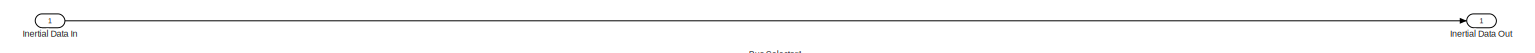
[diagram: Strapdown Navigation/Update Earth Data - part 1/3, full width, top band]
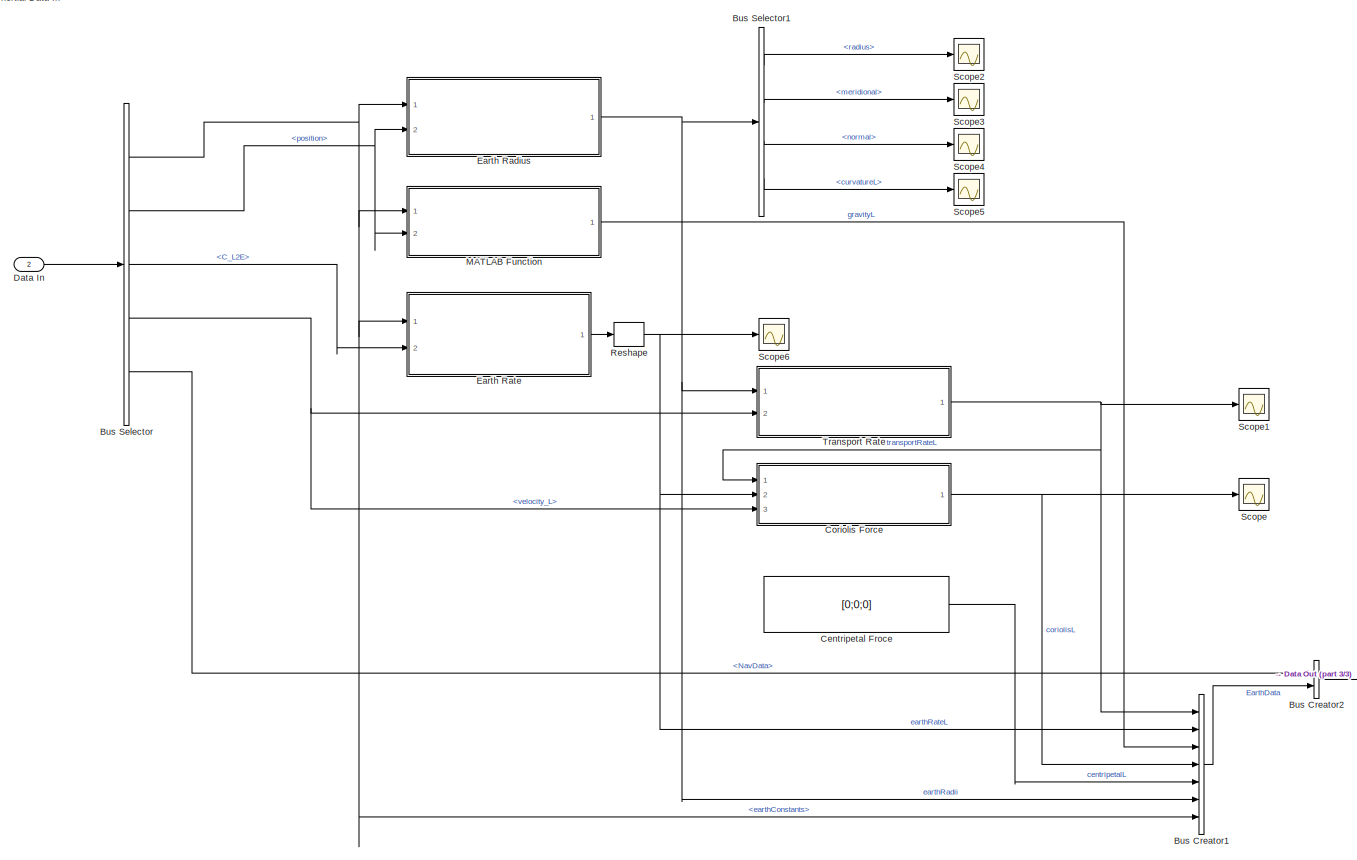
[diagram: Strapdown Navigation/Update Earth Data - part 2/3, most of the canvas]
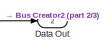
[diagram: Strapdown Navigation/Update Earth Data - part 3/3, bottom right region]
BLOCK [SubSystem] Strapdown Navigation/Update Earth Data
  Ports = [2, 2]
  RequestExecContextInheritance = off
BLOCK [BusCreator] Strapdown Navigation/Update Earth Data/Bus Creator1
  DisplayOption = bar
  Inputs = 7
  OutDataTypeStr = Bus: BEarthData
  Ports = [7, 1]
BLOCK [BusCreator] Strapdown Navigation/Update Earth Data/Bus Creator2
  DisplayOption = bar
  Inputs = 2
  OutDataTypeStr = Bus: BSystem
  Ports = [2, 1]
BLOCK [BusSelector] Strapdown Navigation/Update Earth Data/Bus Selector
  OutputSignals = EarthData.earthConstants,NavData.position,NavData.C_L2E,NavData.velocity_L,NavData
  Ports = [1, 5]
BLOCK [BusSelector] Strapdown Navigation/Update Earth Data/Bus Selector1
  OutputSignals = radius,meridional,normal,curvatureL
  Ports = [1, 4]
BLOCK [Constant] Strapdown Navigation/Update Earth Data/Centripetal Froce
  Value = [0;0;0]
BLOCK [SubSystem] Strapdown Navigation/Update Earth Data/Coriolis Force
  Ports = [3, 1]
  RequestExecContextInheritance = off
BLOCK [Sum] Strapdown Navigation/Update Earth Data/Coriolis Force/Add
  InputSameDT = off
  OutDataTypeStr = Inherit: Inherit via internal rule
  Ports = [2, 1]
  SaturateOnIntegerOverflow = off
BLOCK [Outport] Strapdown Navigation/Update Earth Data/Coriolis Force/CoriolisL
  IconDisplay = Port number
BLOCK [Reference] Strapdown Navigation/Update Earth Data/Coriolis Force/Cross Product  REF=vrlib/Utilities/Cross Product
  Ports = [2, 1]
  SourceBlock = vrlib/Utilities/Cross Product
  SourceType = Cross Product
BLOCK [Gain] Strapdown Navigation/Update Earth Data/Coriolis Force/Gain
  Gain = 2
  OutDataTypeStr = Inherit: Inherit via internal rule
  ParamDataTypeStr = Inherit: Inherit via internal rule
  SaturateOnIntegerOverflow = off
BLOCK [Inport] Strapdown Navigation/Update Earth Data/Coriolis Force/earthRateL
  IconDisplay = Port number
  Port = 2
BLOCK [Inport] Strapdown Navigation/Update Earth Data/Coriolis Force/transportRateL
  IconDisplay = Port number
BLOCK [Inport] Strapdown Navigation/Update Earth Data/Coriolis Force/velocityL
  IconDisplay = Port number
  Port = 3
BLOCK [Inport] Strapdown Navigation/Update Earth Data/Data In
  IconDisplay = Port number
  Port = 2
BLOCK [Outport] Strapdown Navigation/Update Earth Data/Data Out
  IconDisplay = Port number
  OutDataTypeStr = Bus: BSystem
  Port = 2
BLOCK [SubSystem] Strapdown Navigation/Update Earth Data/Earth Radius 
  ErrorFcn = Stateflow.Translate.translate
  PermitHierarchicalResolution = ExplicitOnly
  Ports = [2, 1]
  RequestExecContextInheritance = off
  SFBlockType = MATLAB Function
  TreatAsAtomicUnit = on
BLOCK [Demux] Strapdown Navigation/Update Earth Data/Earth Radius / Demux 
  Outputs = 1
  Ports = [1, 1]
BLOCK [S-Function] Strapdown Navigation/Update Earth Data/Earth Radius / SFunction 
  FunctionName = sf_sfun
  PortCounts = [2 2]
  Ports = [2, 2]
  Tag = Stateflow S-Function basicINS 3
BLOCK [Terminator] Strapdown Navigation/Update Earth Data/Earth Radius / Terminator 
BLOCK [Inport] Strapdown Navigation/Update Earth Data/Earth Radius /earthConstants
  IconDisplay = Port number
BLOCK [Outport] Strapdown Navigation/Update Earth Data/Earth Radius /earthRadii
  IconDisplay = Port number
BLOCK [Inport] Strapdown Navigation/Update Earth Data/Earth Radius /position
  IconDisplay = Port number
  Port = 2
BLOCK [SubSystem] Strapdown Navigation/Update Earth Data/Earth Rate
  ErrorFcn = Stateflow.Translate.translate
  PermitHierarchicalResolution = ExplicitOnly
  Ports = [2, 1]
  RequestExecContextInheritance = off
  SFBlockType = MATLAB Function
  TreatAsAtomicUnit = on
BLOCK [Demux] Strapdown Navigation/Update Earth Data/Earth Rate/ Demux 
  Outputs = 1
  Ports = [1, 1]
BLOCK [S-Function] Strapdown Navigation/Update Earth Data/Earth Rate/ SFunction 
  FunctionName = sf_sfun
  PortCounts = [2 2]
  Ports = [2, 2]
  Tag = Stateflow S-Function basicINS 4
BLOCK [Terminator] Strapdown Navigation/Update Earth Data/Earth Rate/ Terminator 
BLOCK [Inport] Strapdown Navigation/Update Earth Data/Earth Rate/cL2E
  IconDisplay = Port number
  Port = 2
BLOCK [Inport] Strapdown Navigation/Update Earth Data/Earth Rate/earthConstants
  IconDisplay = Port number
BLOCK [Outport] Strapdown Navigation/Update Earth Data/Earth Rate/earthRateL
  IconDisplay = Port number
BLOCK [Inport] Strapdown Navigation/Update Earth Data/Inertial Data In
  IconDisplay = Port number
BLOCK [Outport] Strapdown Navigation/Update Earth Data/Inertial Data Out
  IconDisplay = Port number
BLOCK [SubSystem] Strapdown Navigation/Update Earth Data/MATLAB Function
  ErrorFcn = Stateflow.Translate.translate
  PermitHierarchicalResolution = ExplicitOnly
  Ports = [2, 1]
  RequestExecContextInheritance = off
  SFBlockType = MATLAB Function
  TreatAsAtomicUnit = on
BLOCK [Demux] Strapdown Navigation/Update Earth Data/MATLAB Function/ Demux 
  Outputs = 1
  Ports = [1, 1]
BLOCK [S-Function] Strapdown Navigation/Update Earth Data/MATLAB Function/ SFunction 
  FunctionName = sf_sfun
  PortCounts = [2 2]
  Ports = [2, 2]
  Tag = Stateflow S-Function basicINS 5
BLOCK [Terminator] Strapdown Navigation/Update Earth Data/MATLAB Function/ Terminator 
BLOCK [Inport] Strapdown Navigation/Update Earth Data/MATLAB Function/earthConstants
  IconDisplay = Port number
BLOCK [Outport] Strapdown Navigation/Update Earth Data/MATLAB Function/gravityL
  IconDisplay = Port number
BLOCK [Inport] Strapdown Navigation/Update Earth Data/MATLAB Function/position
  IconDisplay = Port number
  Port = 2
BLOCK [Reshape] Strapdown Navigation/Update Earth Data/Reshape
  OutputDimensionality = Column vector (2-D)
  Ports = [1, 1]
BLOCK [Scope] Strapdown Navigation/Update Earth Data/Scope
  DataFormat = StructureWithTime
  Floating = off
  LegendLocations = 0.065643     0.68697     0.12995     0.18926
  NumInputPorts = 1
  Ports = [1]
  SampleTime = 0
  SaveName = ScopeData4
  ShowLegends = on
BLOCK [Scope] Strapdown Navigation/Update Earth Data/Scope1
  DataFormat = StructureWithTime
  Floating = off
  LegendLocations = 0.76318     0.82714      0.1935     0.10111
  NumInputPorts = 1
  Ports = [1]
  SampleTime = 0
  SaveName = ScopeData6
  ShowLegends = on
BLOCK [Scope] Strapdown Navigation/Update Earth Data/Scope2
  DataFormat = StructureWithTime
  Floating = off
  LimitDataPoints = off
  NumInputPorts = 1
  Ports = [1]
  SampleTime = 0
  SaveName = ScopeData10
  ZoomMode = xonly
BLOCK [Scope] Strapdown Navigation/Update Earth Data/Scope3
  DataFormat = StructureWithTime
  Floating = off
  LimitDataPoints = off
  NumInputPorts = 1
  Ports = [1]
  SampleTime = 0
  SaveName = ScopeData11
BLOCK [Scope] Strapdown Navigation/Update Earth Data/Scope4
  DataFormat = StructureWithTime
  Floating = off
  LimitDataPoints = off
  NumInputPorts = 1
  Ports = [1]
  SampleTime = 0
  SaveName = ScopeData12
BLOCK [Scope] Strapdown Navigation/Update Earth Data/Scope5
  DataFormat = StructureWithTime
  Floating = off
  LimitDataPoints = off
  NumInputPorts = 1
  Ports = [1]
  SampleTime = 0
  SaveName = ScopeData13
BLOCK [Scope] Strapdown Navigation/Update Earth Data/Scope6
  DataFormat = StructureWithTime
  Floating = off
  LegendLocations = 0.76318     0.82714     0.16949     0.10111
  NumInputPorts = 1
  Ports = [1]
  SampleTime = 0
  SaveName = ScopeData17
  ShowLegends = on
  ZoomMode = xonly
BLOCK [SubSystem] Strapdown Navigation/Update Earth Data/Transport Rate
  ErrorFcn = Stateflow.Translate.translate
  PermitHierarchicalResolution = ExplicitOnly
  Ports = [2, 1]
  RequestExecContextInheritance = off
  SFBlockType = MATLAB Function
  TreatAsAtomicUnit = on
BLOCK [Demux] Strapdown Navigation/Update Earth Data/Transport Rate/ Demux 
  Outputs = 1
  Ports = [1, 1]
BLOCK [S-Function] Strapdown Navigation/Update Earth Data/Transport Rate/ SFunction 
  FunctionName = sf_sfun
  PortCounts = [2 2]
  Ports = [2, 2]
  Tag = Stateflow S-Function basicINS 6
BLOCK [Terminator] Strapdown Navigation/Update Earth Data/Transport Rate/ Terminator 
BLOCK [Inport] Strapdown Navigation/Update Earth Data/Transport Rate/earthRadii
  IconDisplay = Port number
BLOCK [Outport] Strapdown Navigation/Update Earth Data/Transport Rate/transportRateL
  IconDisplay = Port number
BLOCK [Inport] Strapdown Navigation/Update Earth Data/Transport Rate/velocityL
  IconDisplay = Port number
  Port = 2
BLOCK [SubSystem] Strapdown Navigation/Velocity Integration
  Ports = [2, 2]
  RequestExecContextInheritance = off
BLOCK [BusAssignment] Strapdown Navigation/Velocity Integration/Bus Assignment
  AssignedSignals = NavData.velocity_L
  Ports = [2, 1]
BLOCK [BusSelector] Strapdown Navigation/Velocity Integration/Bus Selector
  OutputSignals = specific_force,angular_rate
  Ports = [1, 2]
BLOCK [BusSelector] Strapdown Navigation/Velocity Integration/Bus Selector1
  OutputSignals = NavData.C_B2L,EarthData.gravityL,EarthData.coriolisL,EarthData.centripetalL,NavData.velocity_L
  Ports = [1, 5]
BLOCK [Constant] Strapdown Navigation/Velocity Integration/Constant1
  Value = [0;0;0]
BLOCK [Constant] Strapdown Navigation/Velocity Integration/Constant2
  Value = [0;0;0]
BLOCK [Inport] Strapdown Navigation/Velocity Integration/Data In
  IconDisplay = Port number
  Port = 2
BLOCK [Outport] Strapdown Navigation/Velocity Integration/Data Out
  IconDisplay = Port number
  OutDataTypeStr = Bus: BSystem
  Port = 2
BLOCK [Gain] Strapdown Navigation/Velocity Integration/Gain
  Gain = tS
  OutDataTypeStr = Inherit: Inherit via internal rule
  ParamDataTypeStr = Inherit: Inherit via internal rule
  SaturateOnIntegerOverflow = off
BLOCK [Gain] Strapdown Navigation/Velocity Integration/Gain1
  Gain = tS
  OutDataTypeStr = Inherit: Inherit via internal rule
  ParamDataTypeStr = Inherit: Inherit via internal rule
  SaturateOnIntegerOverflow = off
BLOCK [Gain] Strapdown Navigation/Velocity Integration/Gain2
  Gain = tS
  OutDataTypeStr = Inherit: Inherit via internal rule
  ParamDataTypeStr = Inherit: Inherit via internal rule
  SaturateOnIntegerOverflow = off
BLOCK [Gain] Strapdown Navigation/Velocity Integration/Gain3
  Gain = tS
  OutDataTypeStr = Inherit: Inherit via internal rule
  ParamDataTypeStr = Inherit: Inherit via internal rule
  SaturateOnIntegerOverflow = off
BLOCK [Gain] Strapdown Navigation/Velocity Integration/Gain4
  Gain = tS
  OutDataTypeStr = Inherit: Inherit via internal rule
  ParamDataTypeStr = Inherit: Inherit via internal rule
  SaturateOnIntegerOverflow = off
BLOCK [Inport] Strapdown Navigation/Velocity Integration/Inertial Data In
  IconDisplay = Port number
BLOCK [Outport] Strapdown Navigation/Velocity Integration/Inertial Data Out
  IconDisplay = Port number
BLOCK [Product] Strapdown Navigation/Velocity Integration/Rotate from Body to Local Frame
  InputSameDT = off
  Multiplication = Matrix(*)
  OutDataTypeStr = Inherit: Inherit via internal rule
  Ports = [2, 1]
  RndMeth = Floor
  SaturateOnIntegerOverflow = off
BLOCK [SubSystem] Strapdown Navigation/Velocity Integration/Rotation Compensation
  Ports = [2, 1]
  RequestExecContextInheritance = off
BLOCK [Reference] Strapdown Navigation/Velocity Integration/Rotation Compensation/Cross Product  REF=vrlib/Utilities/Cross Product
  Ports = [2, 1]
  SourceBlock = vrlib/Utilities/Cross Product
  SourceType = Cross Product
BLOCK [Reference] Strapdown Navigation/Velocity Integration/Rotation Compensation/Degrees to Radians1  REF=simulink_extras/Transformations/Degrees to
Radians
  Ports = [1, 1]
  SourceBlock = simulink_extras/Transformations/Degrees to\nRadians
  SourceType = DegreesToRadians
BLOCK [Gain] Strapdown Navigation/Velocity Integration/Rotation Compensation/Gain2
  Gain = 1/2
  OutDataTypeStr = Inherit: Inherit via internal rule
  ParamDataTypeStr = Inherit: Inherit via internal rule
  SaturateOnIntegerOverflow = off
BLOCK [Scope] Strapdown Navigation/Velocity Integration/Rotation Compensation/Scope1
  DataFormat = StructureWithTime
  Floating = off
  LegendLocations = 0.79196     0.62518     0.18134    0.085795
  NumInputPorts = 1
  Ports = [1]
  SampleTime = 0
  SaveName = ScopeData8
  ShowLegends = on
BLOCK [Scope] Strapdown Navigation/Velocity Integration/Rotation Compensation/Scope2
  DataFormat = StructureWithTime
  Floating = off
  LegendLocations = 0.76555     0.75738     0.18134    0.085795
  NumInputPorts = 1
  Ports = [1]
  SampleTime = 0
  SaveName = ScopeData18
  ShowLegends = on
BLOCK [Scope] Strapdown Navigation/Velocity Integration/Rotation Compensation/Scope5
  DataFormat = StructureWithTime
  Floating = off
  LegendLocations = 0.75765      0.7402     0.14697    0.070358
  NumInputPorts = 1
  Ports = [1]
  SampleTime = 0
  SaveName = ScopeData7
  ShowLegends = on
BLOCK [Selector] Strapdown Navigation/Velocity Integration/Rotation Compensation/Selector
  Indices = [2]
  InputPortWidth = 3
  Ports = [1, 1]
BLOCK [Selector] Strapdown Navigation/Velocity Integration/Rotation Compensation/Selector1
  Indices = [2]
  InputPortWidth = 3
  Ports = [1, 1]
BLOCK [Selector] Strapdown Navigation/Velocity Integration/Rotation Compensation/Selector2
  Indices = [2]
  InputPortWidth = 3
  Ports = [1, 1]
BLOCK [Sum] Strapdown Navigation/Velocity Integration/Rotation Compensation/Sum
  IconShape = round
  InputSameDT = off
  Inputs = |-+
  OutDataTypeStr = Inherit: Inherit via internal rule
  Ports = [2, 1]
  SaturateOnIntegerOverflow = off
BLOCK [Inport] Strapdown Navigation/Velocity Integration/Rotation Compensation/deltaAngle
  IconDisplay = Port number
  Port = 2
BLOCK [Inport] Strapdown Navigation/Velocity Integration/Rotation Compensation/deltaV
  IconDisplay = Port number
BLOCK [Outport] Strapdown Navigation/Velocity Integration/Rotation Compensation/deltaV Out
  IconDisplay = Port number
BLOCK [Scope] Strapdown Navigation/Velocity Integration/Scope
  DataFormat = StructureWithTime
  Floating = off
  LimitDataPoints = off
  NumInputPorts = 1
  Ports = [1]
  SampleTime = 0
  ShowLegends = on
  YMax = 150
  YMin = -150
BLOCK [Sum] Strapdown Navigation/Velocity Integration/Subtract
  InputSameDT = off
  Inputs = ++--
  OutDataTypeStr = Inherit: Inherit via internal rule
  Ports = [4, 1]
  SaturateOnIntegerOverflow = off
BLOCK [Sum] Strapdown Navigation/Velocity Integration/Sum
  IconShape = round
  InputSameDT = off
  Inputs = |++
  OutDataTypeStr = Inherit: Inherit via internal rule
  Ports = [2, 1]
  SaturateOnIntegerOverflow = off
BLOCK [Terminator] Strapdown Navigation/Velocity Integration/Terminator1
BLOCK [Terminator] Strapdown Navigation/Velocity Integration/Terminator2
BLOCK [Inport] Strapdown Navigation/inertialData
  IconDisplay = Port number
BLOCK [Inport] Strapdown Navigation/prevData
  IconDisplay = Port number
  OutDataTypeStr = Bus: BSystem
  Port = 2
BLOCK [Switch] Switch
  Criteria = u2 > Threshold
  InputSameDT = off
  SaturateOnIntegerOverflow = off
BLOCK [Terminator] Terminator
BLOCK [UnitDelay] Unit Delay
  InputProcessing = Elements as channels (sample based)
  SampleTime = -1
ANNOTATION (root): Initial Data
ANNOTATION (root): Only run Initialization for set period of time
ANNOTATION Initialize Navigation System: Attitude Initialization
ANNOTATION Initialize Navigation System: Check that C_L2E is being calculated correctly
ANNOTATION Initialize Navigation System: EarthData Initialization
ANNOTATION Initialize Navigation System: Initial C_L2E:
ANNOTATION Initialize Navigation System: Initial Position:
ANNOTATION Initialize Navigation System: Initialize Earth Rotation in current L Frame
ANNOTATION Initialize Navigation System: Initialized the NavData Signal Bus. Composed of the following: -Position Latitude Longitude Wander Angle Altitude -Attitude Roll Pitch Yaw -C_L2E DCM Rotation -C_B2L DCM Rotation -Velocity_L
ANNOTATION Initialize Navigation System: Position Initialization
ANNOTATION Initialize Navigation System/Calculate DCM B2L: Computes DCM Rotational Matrix from Body Frame to Earth Frame
ANNOTATION Initialize Navigation System/Subsystem: Computes DCM Rotation Matrix from Local Frame to Earth Frame
ANNOTATION Strapdown Navigation/Attitude Integration: Apply DCM Integration to calculate DCM Rotation and vehicle attitude
ANNOTATION Strapdown Navigation/Attitude Integration: C_B2L
ANNOTATION Strapdown Navigation/Attitude Integration: Calculate deltaAngle for this time step
ANNOTATION Strapdown Navigation/Attitude Integration: DCM Integration
ANNOTATION Strapdown Navigation/Attitude Integration: Tradition Integration using angular rate
ANNOTATION Strapdown Navigation/Attitude Integration/Earth Rotation Correction: Combine earth rate with transport rate and convert this value to the Body Frame so it can be subtracted from the gyro measurement.
ANNOTATION Strapdown Navigation/Position Integration: C_L2E
ANNOTATION Strapdown Navigation/Position Integration: Latitude, Longitude, Wander Angle, and Altitude
ANNOTATION Strapdown Navigation/Position Integration/Update Altitude: Note: +vL(z) is -delta Altitude
ANNOTATION Strapdown Navigation/Velocity Integration: Calculates the deltaV (velocity) for this time step, then compensates for centripetal force due to rotation.
ANNOTATION Strapdown Navigation/Velocity Integration: Subtracts out forces due to: gravity, coriolis,centripetal from earth motion
ANNOTATION Strapdown Navigation/Velocity Integration/Rotation Compensation: Rotation compensation to subtract out centripetal force due to rotation of the vehicle
LINE From Workspace:1 -> Rate Transition:1
LINE Initialize Navigation System/Bus Creator1:1 -> Initialize Navigation System/Bus Creator3:1
NET Initialize Navigation System/Bus Creator2:1 -> Initialize Navigation System/Bus Creator1:1, Initialize Navigation System/Convert to Degrees:1
LINE Initialize Navigation System/Bus Creator3:1 -> Initialize Navigation System/Update Earth Data:1
LINE Initialize Navigation System/Bus Creator4:1 -> Initialize Navigation System/Bus Creator3:2
LINE Initialize Navigation System/Bus Creator:1 -> Initialize Navigation System/Bus Creator1:2
LINE Initialize Navigation System/Bus Selector:1 -> Initialize Navigation System/Subsystem1:2
LINE Initialize Navigation System/Calculate DCM B2L/MATLAB Function:1 -> Initialize Navigation System/Calculate DCM B2L/C_B2L:1
LINE Initialize Navigation System/Calculate DCM B2L/pitch:1 -> Initialize Navigation System/Calculate DCM B2L/MATLAB Function:2
LINE Initialize Navigation System/Calculate DCM B2L/roll:1 -> Initialize Navigation System/Calculate DCM B2L/MATLAB Function:1
LINE Initialize Navigation System/Calculate DCM B2L/yaw:1 -> Initialize Navigation System/Calculate DCM B2L/MATLAB Function:3
LINE Initialize Navigation System/Calculate DCM B2L:1 -> Initialize Navigation System/Bus Creator1:4
LINE Initialize Navigation System/Constant10:1 -> Initialize Navigation System/Terminator:1
LINE Initialize Navigation System/Constant11:1 -> Initialize Navigation System/Bus Creator4:3
LINE Initialize Navigation System/Constant12:1 -> Initialize Navigation System/Reshape1:1
LINE Initialize Navigation System/Constant13:1 -> Initialize Navigation System/Bus Creator4:5
LINE Initialize Navigation System/Constant14:1 -> Initialize Navigation System/Bus Creator4:6
NET Initialize Navigation System/Constant1:1 -> Initialize Navigation System/Bus Creator2:2, Initialize Navigation System/Radians to Degrees1:1, Initialize Navigation System/Subsystem:2
NET Initialize Navigation System/Constant2:1 -> Initialize Navigation System/Bus Creator2:3, Initialize Navigation System/Display2:1, Initialize Navigation System/Subsystem:3
NET Initialize Navigation System/Constant3:1 -> Initialize Navigation System/Bus Creator2:4, Initialize Navigation System/Display4:1
NET Initialize Navigation System/Constant4:1 -> Initialize Navigation System/Bus Creator:1, Initialize Navigation System/Calculate DCM B2L:1, Initialize Navigation System/Radians to Degrees2:1
NET Initialize Navigation System/Constant5:1 -> Initialize Navigation System/Bus Creator:2, Initialize Navigation System/Calculate DCM B2L:2, Initialize Navigation System/Radians to Degrees3:1
NET Initialize Navigation System/Constant6:1 -> Initialize Navigation System/Bus Creator:3, Initialize Navigation System/Calculate DCM B2L:3, Initialize Navigation System/Radians to Degrees4:1
LINE Initialize Navigation System/Constant7:1 -> Initialize Navigation System/Reshape:1
NET Initialize Navigation System/Constant8:1 -> Initialize Navigation System/Bus Creator4:7, Initialize Navigation System/Bus Selector:1
LINE Initialize Navigation System/Constant9:1 -> Initialize Navigation System/Bus Creator4:1
NET Initialize Navigation System/Constant:1 -> Initialize Navigation System/Bus Creator2:1, Initialize Navigation System/Radians to Degrees:1, Initialize Navigation System/Subsystem:1
LINE Initialize Navigation System/Convert to Degrees/Bus Creator3:1 -> Initialize Navigation System/Convert to Degrees/Out1:1
LINE Initialize Navigation System/Convert to Degrees/Bus Selector4:1 -> Initialize Navigation System/Convert to Degrees/Radians to Degrees:1
LINE Initialize Navigation System/Convert to Degrees/Bus Selector4:2 -> Initialize Navigation System/Convert to Degrees/Radians to Degrees1:1
LINE Initialize Navigation System/Convert to Degrees/Bus Selector4:3 -> Initialize Navigation System/Convert to Degrees/Bus Creator3:3
LINE Initialize Navigation System/Convert to Degrees/Bus Selector4:4 -> Initialize Navigation System/Convert to Degrees/Bus Creator3:4
LINE Initialize Navigation System/Convert to Degrees/In1:1 -> Initialize Navigation System/Convert to Degrees/Bus Selector4:1
LINE Initialize Navigation System/Convert to Degrees/Radians to Degrees1:1 -> Initialize Navigation System/Convert to Degrees/Bus Creator3:2
LINE Initialize Navigation System/Convert to Degrees/Radians to Degrees:1 -> Initialize Navigation System/Convert to Degrees/Bus Creator3:1
LINE Initialize Navigation System/Convert to Degrees:1 -> Initialize Navigation System/Display3:1
LINE Initialize Navigation System/From:1 -> Initialize Navigation System/Subsystem1:1
LINE Initialize Navigation System/Radians to Degrees1:1 -> Initialize Navigation System/Display1:1
LINE Initialize Navigation System/Radians to Degrees2:1 -> Initialize Navigation System/Display5:1
LINE Initialize Navigation System/Radians to Degrees3:1 -> Initialize Navigation System/Display6:1
LINE Initialize Navigation System/Radians to Degrees4:1 -> Initialize Navigation System/Display7:1
LINE Initialize Navigation System/Radians to Degrees5:1 -> Initialize Navigation System/Display9:1
LINE Initialize Navigation System/Radians to Degrees6:1 -> Initialize Navigation System/Display10:1
LINE Initialize Navigation System/Radians to Degrees7:1 -> Initialize Navigation System/Display11:1
LINE Initialize Navigation System/Radians to Degrees:1 -> Initialize Navigation System/Display:1
LINE Initialize Navigation System/Reshape1:1 -> Initialize Navigation System/Bus Creator4:4
LINE Initialize Navigation System/Reshape:1 -> Initialize Navigation System/Bus Creator1:5
LINE Initialize Navigation System/Signal Conversion:1 -> Initialize Navigation System/Init Data:1
LINE Initialize Navigation System/Subsystem/MATLAB Function:1 -> Initialize Navigation System/Subsystem/C_L2E:1
LINE Initialize Navigation System/Subsystem/latitude:1 -> Initialize Navigation System/Subsystem/MATLAB Function:1
LINE Initialize Navigation System/Subsystem/longitude:1 -> Initialize Navigation System/Subsystem/MATLAB Function:2
LINE Initialize Navigation System/Subsystem/wander_angle:1 -> Initialize Navigation System/Subsystem/MATLAB Function:3
LINE Initialize Navigation System/Subsystem1/C_L2E:1 -> Initialize Navigation System/Subsystem1/Math Function:1
LINE Initialize Navigation System/Subsystem1/Math Function:1 -> Initialize Navigation System/Subsystem1/Product:1
LINE Initialize Navigation System/Subsystem1/Product:1 -> Initialize Navigation System/Subsystem1/earthRateL:1
LINE Initialize Navigation System/Subsystem1/earthRateE:1 -> Initialize Navigation System/Subsystem1/Product:2
LINE Initialize Navigation System/Subsystem1:1 -> Initialize Navigation System/Bus Creator4:2
LINE Initialize Navigation System/Subsystem2/C_L2E:1 -> Initialize Navigation System/Subsystem2/MATLAB Function:1
LINE Initialize Navigation System/Subsystem2/MATLAB Function:1 -> Initialize Navigation System/Subsystem2/Latitude:1
LINE Initialize Navigation System/Subsystem2/MATLAB Function:2 -> Initialize Navigation System/Subsystem2/Longitude:1
LINE Initialize Navigation System/Subsystem2/MATLAB Function:3 -> Initialize Navigation System/Subsystem2/Wander_Angle:1
LINE Initialize Navigation System/Subsystem2:1 -> Initialize Navigation System/Radians to Degrees5:1
LINE Initialize Navigation System/Subsystem2:2 -> Initialize Navigation System/Radians to Degrees6:1
LINE Initialize Navigation System/Subsystem2:3 -> Initialize Navigation System/Radians to Degrees7:1
NET Initialize Navigation System/Subsystem:1 -> Initialize Navigation System/Bus Creator1:3, Initialize Navigation System/Display8:1, Initialize Navigation System/Goto:1, Initialize Navigation System/Subsystem2:1
LINE Initialize Navigation System/Update Earth Data/Bus Creator1:1 -> Initialize Navigation System/Update Earth Data/Bus Creator2:2
LINE Initialize Navigation System/Update Earth Data/Bus Creator2:1 -> Initialize Navigation System/Update Earth Data/Data Out:1
LINE Initialize Navigation System/Update Earth Data/Bus Selector1:1 -> Initialize Navigation System/Update Earth Data/Display:1
LINE Initialize Navigation System/Update Earth Data/Bus Selector1:2 -> Initialize Navigation System/Update Earth Data/Display1:1
LINE Initialize Navigation System/Update Earth Data/Bus Selector1:3 -> Initialize Navigation System/Update Earth Data/Display2:1
LINE Initialize Navigation System/Update Earth Data/Bus Selector1:4 -> Initialize Navigation System/Update Earth Data/Display3:1
NET Initialize Navigation System/Update Earth Data/Bus Selector:1 -> Initialize Navigation System/Update Earth Data/Bus Creator1:7, Initialize Navigation System/Update Earth Data/Earth Radius :1, Initialize Navigation System/Update Earth Data/Earth Rate:1, Initialize Navigation System/Update Earth Data/MATLAB Function:1
NET Initialize Navigation System/Update Earth Data/Bus Selector:2 -> Initialize Navigation System/Update Earth Data/Earth Radius :2, Initialize Navigation System/Update Earth Data/MATLAB Function:2
LINE Initialize Navigation System/Update Earth Data/Bus Selector:3 -> Initialize Navigation System/Update Earth Data/Earth Rate:2
NET Initialize Navigation System/Update Earth Data/Bus Selector:4 -> Initialize Navigation System/Update Earth Data/Coriolis Force:3, Initialize Navigation System/Update Earth Data/Transport Rate:2
LINE Initialize Navigation System/Update Earth Data/Bus Selector:5 -> Initialize Navigation System/Update Earth Data/Bus Creator2:1
LINE Initialize Navigation System/Update Earth Data/Centripetal Froce:1 -> Initialize Navigation System/Update Earth Data/Bus Creator1:5
LINE Initialize Navigation System/Update Earth Data/Coriolis Force/Add:1 -> Initialize Navigation System/Update Earth Data/Coriolis Force/Gain:1
LINE Initialize Navigation System/Update Earth Data/Coriolis Force/Cross Product:1 -> Initialize Navigation System/Update Earth Data/Coriolis Force/CoriolisL:1
LINE Initialize Navigation System/Update Earth Data/Coriolis Force/Gain:1 -> Initialize Navigation System/Update Earth Data/Coriolis Force/Cross Product:1
LINE Initialize Navigation System/Update Earth Data/Coriolis Force/earthRateL:1 -> Initialize Navigation System/Update Earth Data/Coriolis Force/Add:2
LINE Initialize Navigation System/Update Earth Data/Coriolis Force/transportRateL:1 -> Initialize Navigation System/Update Earth Data/Coriolis Force/Add:1
LINE Initialize Navigation System/Update Earth Data/Coriolis Force/velocityL:1 -> Initialize Navigation System/Update Earth Data/Coriolis Force/Cross Product:2
LINE Initialize Navigation System/Update Earth Data/Coriolis Force:1 -> Initialize Navigation System/Update Earth Data/Bus Creator1:4
LINE Initialize Navigation System/Update Earth Data/Data In:1 -> Initialize Navigation System/Update Earth Data/Bus Selector:1
NET Initialize Navigation System/Update Earth Data/Earth Radius :1 -> Initialize Navigation System/Update Earth Data/Bus Creator1:6, Initialize Navigation System/Update Earth Data/Bus Selector1:1, Initialize Navigation System/Update Earth Data/Transport Rate:1
LINE Initialize Navigation System/Update Earth Data/Earth Rate:1 -> Initialize Navigation System/Update Earth Data/Reshape:1
LINE Initialize Navigation System/Update Earth Data/MATLAB Function:1 -> Initialize Navigation System/Update Earth Data/Bus Creator1:3
NET Initialize Navigation System/Update Earth Data/Reshape:1 -> Initialize Navigation System/Update Earth Data/Bus Creator1:2, Initialize Navigation System/Update Earth Data/Coriolis Force:2
NET Initialize Navigation System/Update Earth Data/Transport Rate:1 -> Initialize Navigation System/Update Earth Data/Bus Creator1:1, Initialize Navigation System/Update Earth Data/Coriolis Force:1
LINE Initialize Navigation System/Update Earth Data:1 -> Initialize Navigation System/Signal Conversion:1
LINE Initialize Navigation System:1 -> Switch:3
NET Logical Operator:1 -> Strapdown Navigation:enable, Switch:2
LINE Rate Transition:1 -> Strapdown Navigation:1
NET Step:1 -> Initialize Navigation System:enable, Logical Operator:1
LINE Strapdown Navigation/Attitude Integration/Bus Assignment:1 -> Strapdown Navigation/Attitude Integration/Data Out:1
LINE Strapdown Navigation/Attitude Integration/Bus Creator1:1 -> Strapdown Navigation/Attitude Integration/Radians to Degrees:1
NET Strapdown Navigation/Attitude Integration/Bus Selector1:1 -> Strapdown Navigation/Attitude Integration/Discrete-Time Integrator:1, Strapdown Navigation/Attitude Integration/Gain:1
LINE Strapdown Navigation/Attitude Integration/Bus Selector:1 -> Strapdown Navigation/Attitude Integration/Earth Rotation Correction:2
LINE Strapdown Navigation/Attitude Integration/Bus Selector:2 -> Strapdown Navigation/Attitude Integration/Earth Rotation Correction:3
LINE Strapdown Navigation/Attitude Integration/Convert C_B2L to Attitude/C_B2L:1 -> Strapdown Navigation/Attitude Integration/Convert C_B2L to Attitude/MATLAB Function:1
LINE Strapdown Navigation/Attitude Integration/Convert C_B2L to Attitude/MATLAB Function:1 -> Strapdown Navigation/Attitude Integration/Convert C_B2L to Attitude/roll:1
LINE Strapdown Navigation/Attitude Integration/Convert C_B2L to Attitude/MATLAB Function:2 -> Strapdown Navigation/Attitude Integration/Convert C_B2L to Attitude/pitch:1
LINE Strapdown Navigation/Attitude Integration/Convert C_B2L to Attitude/MATLAB Function:3 -> Strapdown Navigation/Attitude Integration/Convert C_B2L to Attitude/yaw:1
NET Strapdown Navigation/Attitude Integration/Convert C_B2L to Attitude:1 -> Strapdown Navigation/Attitude Integration/Bus Assignment:2, Strapdown Navigation/Attitude Integration/Bus Creator1:1
NET Strapdown Navigation/Attitude Integration/Convert C_B2L to Attitude:2 -> Strapdown Navigation/Attitude Integration/Bus Assignment:3, Strapdown Navigation/Attitude Integration/Bus Creator1:2
NET Strapdown Navigation/Attitude Integration/Convert C_B2L to Attitude:3 -> Strapdown Navigation/Attitude Integration/Bus Assignment:4, Strapdown Navigation/Attitude Integration/Bus Creator1:3
LINE Strapdown Navigation/Attitude Integration/DCM Integration/MATLAB Function:1 -> Strapdown Navigation/Attitude Integration/DCM Integration/C_B2L:1
LINE Strapdown Navigation/Attitude Integration/DCM Integration/deltaAng:1 -> Strapdown Navigation/Attitude Integration/DCM Integration/MATLAB Function:1
LINE Strapdown Navigation/Attitude Integration/DCM Integration/prev_C_B2L:1 -> Strapdown Navigation/Attitude Integration/DCM Integration/MATLAB Function:2
NET Strapdown Navigation/Attitude Integration/DCM Integration:1 -> Strapdown Navigation/Attitude Integration/Bus Assignment:5, Strapdown Navigation/Attitude Integration/Convert C_B2L to Attitude:1, Strapdown Navigation/Attitude Integration/Display:1, Strapdown Navigation/Attitude Integration/Scope3:1
LINE Strapdown Navigation/Attitude Integration/Degrees to Radians:1 -> Strapdown Navigation/Attitude Integration/Earth Rotation Correction:1
LINE Strapdown Navigation/Attitude Integration/Discrete-Time Integrator:1 -> Strapdown Navigation/Attitude Integration/Subtract:1
LINE Strapdown Navigation/Attitude Integration/Earth Rotation Correction/Add:1 -> Strapdown Navigation/Attitude Integration/Earth Rotation Correction/Product:2
LINE Strapdown Navigation/Attitude Integration/Earth Rotation Correction/Bus Selector:1 -> Strapdown Navigation/Attitude Integration/Earth Rotation Correction/Gain:1
LINE Strapdown Navigation/Attitude Integration/Earth Rotation Correction/Bus Selector:2 -> Strapdown Navigation/Attitude Integration/Earth Rotation Correction/Gain1:1
LINE Strapdown Navigation/Attitude Integration/Earth Rotation Correction/EarthData:1 -> Strapdown Navigation/Attitude Integration/Earth Rotation Correction/Bus Selector:1
LINE Strapdown Navigation/Attitude Integration/Earth Rotation Correction/Gain1:1 -> Strapdown Navigation/Attitude Integration/Earth Rotation Correction/Add:2
LINE Strapdown Navigation/Attitude Integration/Earth Rotation Correction/Gain:1 -> Strapdown Navigation/Attitude Integration/Earth Rotation Correction/Add:1
LINE Strapdown Navigation/Attitude Integration/Earth Rotation Correction/Matrix Transpose:1 -> Strapdown Navigation/Attitude Integration/Earth Rotation Correction/Product:1
NET Strapdown Navigation/Attitude Integration/Earth Rotation Correction/Product:1 -> Strapdown Navigation/Attitude Integration/Earth Rotation Correction/Scope:1, Strapdown Navigation/Attitude Integration/Earth Rotation Correction/Subtract:2
LINE Strapdown Navigation/Attitude Integration/Earth Rotation Correction/Subtract:1 -> Strapdown Navigation/Attitude Integration/Earth Rotation Correction/deltaAngle_out:1
LINE Strapdown Navigation/Attitude Integration/Earth Rotation Correction/deltaAngle:1 -> Strapdown Navigation/Attitude Integration/Earth Rotation Correction/Subtract:1
NET Strapdown Navigation/Attitude Integration/Earth Rotation Correction/prev_CB2L:1 -> Strapdown Navigation/Attitude Integration/Earth Rotation Correction/CB2L:1, Strapdown Navigation/Attitude Integration/Earth Rotation Correction/Matrix Transpose:1
LINE Strapdown Navigation/Attitude Integration/Earth Rotation Correction:1 -> Strapdown Navigation/Attitude Integration/DCM Integration:1
LINE Strapdown Navigation/Attitude Integration/Earth Rotation Correction:2 -> Strapdown Navigation/Attitude Integration/DCM Integration:2
LINE Strapdown Navigation/Attitude Integration/Gain:1 -> Strapdown Navigation/Attitude Integration/Degrees to Radians:1
NET Strapdown Navigation/Attitude Integration/In1:1 -> Strapdown Navigation/Attitude Integration/Bus Selector1:1, Strapdown Navigation/Attitude Integration/Inertial Data Out:1
NET Strapdown Navigation/Attitude Integration/In2:1 -> Strapdown Navigation/Attitude Integration/Bus Assignment:1, Strapdown Navigation/Attitude Integration/Bus Selector:1
NET Strapdown Navigation/Attitude Integration/Radians to Degrees:1 -> Strapdown Navigation/Attitude Integration/Scope2:1, Strapdown Navigation/Attitude Integration/Unit Delay1:1
LINE Strapdown Navigation/Attitude Integration/Subtract:1 -> Strapdown Navigation/Attitude Integration/Scope1:1
LINE Strapdown Navigation/Attitude Integration/Unit Delay1:1 -> Strapdown Navigation/Attitude Integration/Subtract:2
LINE Strapdown Navigation/Attitude Integration:1 -> Strapdown Navigation/Velocity Integration:1
LINE Strapdown Navigation/Attitude Integration:2 -> Strapdown Navigation/Velocity Integration:2
LINE Strapdown Navigation/Position Integration/Bus Assignment:1 -> Strapdown Navigation/Position Integration/Data Out:1
LINE Strapdown Navigation/Position Integration/Bus Selector:1 -> Strapdown Navigation/Position Integration/Update Altitude:1
LINE Strapdown Navigation/Position Integration/Bus Selector:2 -> Strapdown Navigation/Position Integration/Update Altitude:2
LINE Strapdown Navigation/Position Integration/Bus Selector:3 -> Strapdown Navigation/Position Integration/Gain:1
LINE Strapdown Navigation/Position Integration/Bus Selector:4 -> Strapdown Navigation/Position Integration/DCM Position Integration:2
LINE Strapdown Navigation/Position Integration/Convert C_L2E to Position/C_L2E:1 -> Strapdown Navigation/Position Integration/Convert C_L2E to Position/MATLAB Function1:1
LINE Strapdown Navigation/Position Integration/Convert C_L2E to Position/MATLAB Function1:1 -> Strapdown Navigation/Position Integration/Convert C_L2E to Position/Latitude:1
LINE Strapdown Navigation/Position Integration/Convert C_L2E to Position/MATLAB Function1:2 -> Strapdown Navigation/Position Integration/Convert C_L2E to Position/Longitude:1
LINE Strapdown Navigation/Position Integration/Convert C_L2E to Position/MATLAB Function1:3 -> Strapdown Navigation/Position Integration/Convert C_L2E to Position/Wander_Angle:1
NET Strapdown Navigation/Position Integration/Convert C_L2E to Position:1 -> Strapdown Navigation/Position Integration/Bus Assignment:3, Strapdown Navigation/Position Integration/Convert to Deg and BUS:1
NET Strapdown Navigation/Position Integration/Convert C_L2E to Position:2 -> Strapdown Navigation/Position Integration/Bus Assignment:4, Strapdown Navigation/Position Integration/Convert to Deg and BUS:2
NET Strapdown Navigation/Position Integration/Convert C_L2E to Position:3 -> Strapdown Navigation/Position Integration/Bus Assignment:5, Strapdown Navigation/Position Integration/Convert to Deg and BUS:3
LINE Strapdown Navigation/Position Integration/Convert to Deg and BUS/Bus Creator3:1 -> Strapdown Navigation/Position Integration/Convert to Deg and BUS/Out1:1
LINE Strapdown Navigation/Position Integration/Convert to Deg and BUS/Radians to Degrees1:1 -> Strapdown Navigation/Position Integration/Convert to Deg and BUS/Bus Creator3:2
LINE Strapdown Navigation/Position Integration/Convert to Deg and BUS/Radians to Degrees2:1 -> Strapdown Navigation/Position Integration/Convert to Deg and BUS/Bus Creator3:3
LINE Strapdown Navigation/Position Integration/Convert to Deg and BUS/Radians to Degrees:1 -> Strapdown Navigation/Position Integration/Convert to Deg and BUS/Bus Creator3:1
LINE Strapdown Navigation/Position Integration/Convert to Deg and BUS/alt:1 -> Strapdown Navigation/Position Integration/Convert to Deg and BUS/Bus Creator3:4
LINE Strapdown Navigation/Position Integration/Convert to Deg and BUS/lat:1 -> Strapdown Navigation/Position Integration/Convert to Deg and BUS/Radians to Degrees:1
LINE Strapdown Navigation/Position Integration/Convert to Deg and BUS/long:1 -> Strapdown Navigation/Position Integration/Convert to Deg and BUS/Radians to Degrees1:1
LINE Strapdown Navigation/Position Integration/Convert to Deg and BUS/wan:1 -> Strapdown Navigation/Position Integration/Convert to Deg and BUS/Radians to Degrees2:1
NET Strapdown Navigation/Position Integration/Convert to Deg and BUS:1 -> Strapdown Navigation/Position Integration/Display:1, Strapdown Navigation/Position Integration/Scope:1
LINE Strapdown Navigation/Position Integration/DCM Position Integration/MATLAB Function:1 -> Strapdown Navigation/Position Integration/DCM Position Integration/C_L2E:1
LINE Strapdown Navigation/Position Integration/DCM Position Integration/deltaPos:1 -> Strapdown Navigation/Position Integration/DCM Position Integration/MATLAB Function:1
LINE Strapdown Navigation/Position Integration/DCM Position Integration/prev_C_L2E:1 -> Strapdown Navigation/Position Integration/DCM Position Integration/MATLAB Function:2
NET Strapdown Navigation/Position Integration/DCM Position Integration:1 -> Strapdown Navigation/Position Integration/Bus Assignment:2, Strapdown Navigation/Position Integration/Convert C_L2E to Position:1, Strapdown Navigation/Position Integration/Display1:1
NET Strapdown Navigation/Position Integration/Data In:1 -> Strapdown Navigation/Position Integration/Bus Assignment:1, Strapdown Navigation/Position Integration/Bus Selector:1
LINE Strapdown Navigation/Position Integration/Gain:1 -> Strapdown Navigation/Position Integration/DCM Position Integration:1
LINE Strapdown Navigation/Position Integration/Inertial Data In:1 -> Strapdown Navigation/Position Integration/Inertial Data Out:1
LINE Strapdown Navigation/Position Integration/Update Altitude/Gain:1 -> Strapdown Navigation/Position Integration/Update Altitude/Sum1:2
LINE Strapdown Navigation/Position Integration/Update Altitude/Selector:1 -> Strapdown Navigation/Position Integration/Update Altitude/Gain:1
LINE Strapdown Navigation/Position Integration/Update Altitude/Sum1:1 -> Strapdown Navigation/Position Integration/Update Altitude/Altitude:1
LINE Strapdown Navigation/Position Integration/Update Altitude/prev_altitude:1 -> Strapdown Navigation/Position Integration/Update Altitude/Sum1:1
LINE Strapdown Navigation/Position Integration/Update Altitude/velocity:1 -> Strapdown Navigation/Position Integration/Update Altitude/Selector:1
NET Strapdown Navigation/Position Integration/Update Altitude:1 -> Strapdown Navigation/Position Integration/Bus Assignment:6, Strapdown Navigation/Position Integration/Convert to Deg and BUS:4
LINE Strapdown Navigation/Position Integration:1 -> Strapdown Navigation/Terminator:1
LINE Strapdown Navigation/Position Integration:2 -> Strapdown Navigation/Signal Conversion1:1
LINE Strapdown Navigation/Signal Conversion1:1 -> Strapdown Navigation/DataOut:1
LINE Strapdown Navigation/Update Earth Data/Bus Creator1:1 -> Strapdown Navigation/Update Earth Data/Bus Creator2:2
LINE Strapdown Navigation/Update Earth Data/Bus Creator2:1 -> Strapdown Navigation/Update Earth Data/Data Out:1
LINE Strapdown Navigation/Update Earth Data/Bus Selector1:1 -> Strapdown Navigation/Update Earth Data/Scope2:1
LINE Strapdown Navigation/Update Earth Data/Bus Selector1:2 -> Strapdown Navigation/Update Earth Data/Scope3:1
LINE Strapdown Navigation/Update Earth Data/Bus Selector1:3 -> Strapdown Navigation/Update Earth Data/Scope4:1
LINE Strapdown Navigation/Update Earth Data/Bus Selector1:4 -> Strapdown Navigation/Update Earth Data/Scope5:1
NET Strapdown Navigation/Update Earth Data/Bus Selector:1 -> Strapdown Navigation/Update Earth Data/Bus Creator1:7, Strapdown Navigation/Update Earth Data/Earth Radius :1, Strapdown Navigation/Update Earth Data/Earth Rate:1, Strapdown Navigation/Update Earth Data/MATLAB Function:1
NET Strapdown Navigation/Update Earth Data/Bus Selector:2 -> Strapdown Navigation/Update Earth Data/Earth Radius :2, Strapdown Navigation/Update Earth Data/MATLAB Function:2
LINE Strapdown Navigation/Update Earth Data/Bus Selector:3 -> Strapdown Navigation/Update Earth Data/Earth Rate:2
NET Strapdown Navigation/Update Earth Data/Bus Selector:4 -> Strapdown Navigation/Update Earth Data/Coriolis Force:3, Strapdown Navigation/Update Earth Data/Transport Rate:2
LINE Strapdown Navigation/Update Earth Data/Bus Selector:5 -> Strapdown Navigation/Update Earth Data/Bus Creator2:1
LINE Strapdown Navigation/Update Earth Data/Centripetal Froce:1 -> Strapdown Navigation/Update Earth Data/Bus Creator1:5
LINE Strapdown Navigation/Update Earth Data/Coriolis Force/Add:1 -> Strapdown Navigation/Update Earth Data/Coriolis Force/Gain:1
LINE Strapdown Navigation/Update Earth Data/Coriolis Force/Cross Product:1 -> Strapdown Navigation/Update Earth Data/Coriolis Force/CoriolisL:1
LINE Strapdown Navigation/Update Earth Data/Coriolis Force/Gain:1 -> Strapdown Navigation/Update Earth Data/Coriolis Force/Cross Product:1
LINE Strapdown Navigation/Update Earth Data/Coriolis Force/earthRateL:1 -> Strapdown Navigation/Update Earth Data/Coriolis Force/Add:2
LINE Strapdown Navigation/Update Earth Data/Coriolis Force/transportRateL:1 -> Strapdown Navigation/Update Earth Data/Coriolis Force/Add:1
LINE Strapdown Navigation/Update Earth Data/Coriolis Force/velocityL:1 -> Strapdown Navigation/Update Earth Data/Coriolis Force/Cross Product:2
NET Strapdown Navigation/Update Earth Data/Coriolis Force:1 -> Strapdown Navigation/Update Earth Data/Bus Creator1:4, Strapdown Navigation/Update Earth Data/Scope:1
LINE Strapdown Navigation/Update Earth Data/Data In:1 -> Strapdown Navigation/Update Earth Data/Bus Selector:1
NET Strapdown Navigation/Update Earth Data/Earth Radius :1 -> Strapdown Navigation/Update Earth Data/Bus Creator1:6, Strapdown Navigation/Update Earth Data/Bus Selector1:1, Strapdown Navigation/Update Earth Data/Transport Rate:1
LINE Strapdown Navigation/Update Earth Data/Earth Rate:1 -> Strapdown Navigation/Update Earth Data/Reshape:1
LINE Strapdown Navigation/Update Earth Data/Inertial Data In:1 -> Strapdown Navigation/Update Earth Data/Inertial Data Out:1
LINE Strapdown Navigation/Update Earth Data/MATLAB Function:1 -> Strapdown Navigation/Update Earth Data/Bus Creator1:3
NET Strapdown Navigation/Update Earth Data/Reshape:1 -> Strapdown Navigation/Update Earth Data/Bus Creator1:2, Strapdown Navigation/Update Earth Data/Coriolis Force:2, Strapdown Navigation/Update Earth Data/Scope6:1
NET Strapdown Navigation/Update Earth Data/Transport Rate:1 -> Strapdown Navigation/Update Earth Data/Bus Creator1:1, Strapdown Navigation/Update Earth Data/Coriolis Force:1, Strapdown Navigation/Update Earth Data/Scope1:1
LINE Strapdown Navigation/Update Earth Data:1 -> Strapdown Navigation/Position Integration:1
LINE Strapdown Navigation/Update Earth Data:2 -> Strapdown Navigation/Position Integration:2
LINE Strapdown Navigation/Velocity Integration/Bus Assignment:1 -> Strapdown Navigation/Velocity Integration/Data Out:1
LINE Strapdown Navigation/Velocity Integration/Bus Selector1:1 -> Strapdown Navigation/Velocity Integration/Rotate from Body to Local Frame:1
LINE Strapdown Navigation/Velocity Integration/Bus Selector1:2 -> Strapdown Navigation/Velocity Integration/Gain2:1
LINE Strapdown Navigation/Velocity Integration/Bus Selector1:3 -> Strapdown Navigation/Velocity Integration/Gain3:1
LINE Strapdown Navigation/Velocity Integration/Bus Selector1:4 -> Strapdown Navigation/Velocity Integration/Gain4:1
LINE Strapdown Navigation/Velocity Integration/Bus Selector1:5 -> Strapdown Navigation/Velocity Integration/Sum:2
LINE Strapdown Navigation/Velocity Integration/Bus Selector:1 -> Strapdown Navigation/Velocity Integration/Gain:1
LINE Strapdown Navigation/Velocity Integration/Bus Selector:2 -> Strapdown Navigation/Velocity Integration/Gain1:1
LINE Strapdown Navigation/Velocity Integration/Constant1:1 -> Strapdown Navigation/Velocity Integration/Subtract:4
LINE Strapdown Navigation/Velocity Integration/Constant2:1 -> Strapdown Navigation/Velocity Integration/Subtract:3
NET Strapdown Navigation/Velocity Integration/Data In:1 -> Strapdown Navigation/Velocity Integration/Bus Assignment:1, Strapdown Navigation/Velocity Integration/Bus Selector1:1
LINE Strapdown Navigation/Velocity Integration/Gain1:1 -> Strapdown Navigation/Velocity Integration/Rotation Compensation:2
LINE Strapdown Navigation/Velocity Integration/Gain2:1 -> Strapdown Navigation/Velocity Integration/Subtract:2
LINE Strapdown Navigation/Velocity Integration/Gain3:1 -> Strapdown Navigation/Velocity Integration/Terminator2:1
LINE Strapdown Navigation/Velocity Integration/Gain4:1 -> Strapdown Navigation/Velocity Integration/Terminator1:1
LINE Strapdown Navigation/Velocity Integration/Gain:1 -> Strapdown Navigation/Velocity Integration/Rotation Compensation:1
NET Strapdown Navigation/Velocity Integration/Inertial Data In:1 -> Strapdown Navigation/Velocity Integration/Bus Selector:1, Strapdown Navigation/Velocity Integration/Inertial Data Out:1
LINE Strapdown Navigation/Velocity Integration/Rotate from Body to Local Frame:1 -> Strapdown Navigation/Velocity Integration/Subtract:1
NET Strapdown Navigation/Velocity Integration/Rotation Compensation/Cross Product:1 -> Strapdown Navigation/Velocity Integration/Rotation Compensation/Gain2:1, Strapdown Navigation/Velocity Integration/Rotation Compensation/Selector:1
LINE Strapdown Navigation/Velocity Integration/Rotation Compensation/Degrees to Radians1:1 -> Strapdown Navigation/Velocity Integration/Rotation Compensation/Cross Product:1
LINE Strapdown Navigation/Velocity Integration/Rotation Compensation/Gain2:1 -> Strapdown Navigation/Velocity Integration/Rotation Compensation/Sum:1
LINE Strapdown Navigation/Velocity Integration/Rotation Compensation/Selector1:1 -> Strapdown Navigation/Velocity Integration/Rotation Compensation/Scope1:1
LINE Strapdown Navigation/Velocity Integration/Rotation Compensation/Selector2:1 -> Strapdown Navigation/Velocity Integration/Rotation Compensation/Scope2:1
LINE Strapdown Navigation/Velocity Integration/Rotation Compensation/Selector:1 -> Strapdown Navigation/Velocity Integration/Rotation Compensation/Scope5:1
NET Strapdown Navigation/Velocity Integration/Rotation Compensation/Sum:1 -> Strapdown Navigation/Velocity Integration/Rotation Compensation/Selector1:1, Strapdown Navigation/Velocity Integration/Rotation Compensation/deltaV Out:1
LINE Strapdown Navigation/Velocity Integration/Rotation Compensation/deltaAngle:1 -> Strapdown Navigation/Velocity Integration/Rotation Compensation/Degrees to Radians1:1
NET Strapdown Navigation/Velocity Integration/Rotation Compensation/deltaV:1 -> Strapdown Navigation/Velocity Integration/Rotation Compensation/Cross Product:2, Strapdown Navigation/Velocity Integration/Rotation Compensation/Selector2:1, Strapdown Navigation/Velocity Integration/Rotation Compensation/Sum:2
LINE Strapdown Navigation/Velocity Integration/Rotation Compensation:1 -> Strapdown Navigation/Velocity Integration/Rotate from Body to Local Frame:2
LINE Strapdown Navigation/Velocity Integration/Subtract:1 -> Strapdown Navigation/Velocity Integration/Sum:1
NET Strapdown Navigation/Velocity Integration/Sum:1 -> Strapdown Navigation/Velocity Integration/Bus Assignment:2, Strapdown Navigation/Velocity Integration/Scope:1
LINE Strapdown Navigation/Velocity Integration:1 -> Strapdown Navigation/Update Earth Data:1
LINE Strapdown Navigation/Velocity Integration:2 -> Strapdown Navigation/Update Earth Data:2
LINE Strapdown Navigation/inertialData:1 -> Strapdown Navigation/Attitude Integration:1
LINE Strapdown Navigation/prevData:1 -> Strapdown Navigation/Attitude Integration:2
NET Strapdown Navigation:1 -> Switch:1, Terminator:1
LINE Switch:1 -> Unit Delay:1
LINE Unit Delay:1 -> Strapdown Navigation:2
note: NET lines group one-source signal fan-out (src -> all destinations, sorted); 1:1 wires keep LINE
CHART Initialize
Navigation System/Subsystem/MATLAB Function states=1 transitions=1
  STATE_LABEL 'eML_blk_kernel()'
  STATE_LABEL 'SCRIPT:\nfunction C_L2E  = DCM_L2E(lat, long, wander)\n    \n    % Calculate DCM Rotation C_E2L:\n   \n    align_axes =   [0 0 1;...\n                    0 1 0;...\n                   -1 0 0];\n\n    Rotate_wander = [cos(wander)   sin(wander) 0; ...\n                    -sin(wander)   cos(wander) 0; ...\n                    0               0          1];\n    \n    %Transpose on Latitude term since positive la...<+470ch>'
CHART Initialize
Navigation System/Calculate DCM B2L/MATLAB Function states=1 transitions=1
  STATE_LABEL 'eML_blk_kernel()'
  STATE_LABEL 'SCRIPT:\nfunction C_B2L = DCM_B2L(roll, pitch, yaw)\n\n\n    Rotate_roll = [1        0                   0; ...\n                   0        cos(roll)   sin(roll); ...\n                   0       -sin(roll)   cos(roll)];\n\n    Rotate_pitch =[cos(pitch) 0        -sin(pitch);...\n                   0          1         0;...\n                   sin(pitch) 0         cos(pitch)];\n    \n    Rotate_yaw  = [cos(ya...<+180ch>'
CHART Strapdown Navigation/Update Earth Data/Earth Radius 
 states=1 transitions=1
  STATE_LABEL 'eML_blk_kernel()'
  STATE_LABEL 'SCRIPT:\nfunction earthRadii   = Radii(earthConstants, position)\n%#codegen\n\nr = zeros(3,1);\n\nearthRadii.radius          = 0;\nearthRadii.meridional      = 0;\nearthRadii.normal          = 0;\n\n\nt1 = (earthConstants.radiusEquator^2*cos(position.latitude))^2 + (earthConstants.radiusPolar^2*sin(position.latitude))^2;  % convenience computation\nt2 = (earthConstants.radiusEquator*cos(position.latitude))^2 ...<+1045ch>'
CHART Strapdown Navigation/Update Earth Data/Earth Rate states=1 transitions=1
  STATE_LABEL 'eML_blk_kernel()'
  STATE_LABEL "SCRIPT:\nfunction earthRateL = EarthRate(earthConstants, cL2E)\n%#codegen\n\npersistent earthRatePastL;\n\nif isempty(earthRatePastL)\n    %earthRatePastL = zeros(3,1);\n    earthRatePastL = cL2E' * earthConstants.earthRateE;\n    %\nend\nearthRateI = earthConstants.earthRateE;\n\nearthRateInstantL = cL2E' * earthConstants.earthRateE;\n\nearthRateL = (earthRateInstantL + earthRatePastL) / 2;\n\nearthRatePastL = ea...<+17ch>"
CHART Strapdown Navigation/Update Earth Data/MATLAB Function states=1 transitions=1
  STATE_LABEL 'eML_blk_kernel()'
  STATE_LABEL 'SCRIPT:\nfunction gravityL = Gravity(earthConstants,position)\n%#codegen\n\n\nsin2Lat = sin(position.latitude)^2;\nh       = position.altitude;\na       = earthConstants.radiusEquator;\nb       = earthConstants.radiusPolar;\ne       = earthConstants.e;\nf       = earthConstants.f;\ngm      = earthConstants.gm;\nk       = ((b * earthConstants.gPolar)/(a*earthConstants.gEquator))-1;\nm       = earthConstants.ear...<+439ch>'
CHART Strapdown Navigation/Update Earth Data/Transport Rate states=1 transitions=1
  STATE_LABEL 'eML_blk_kernel()'
  STATE_LABEL 'SCRIPT:\nfunction transportRateL  = TransportRate(earthRadii,velocityL)\n%#codegen\n\npersistent vPastL;\n\nif isempty(vPastL)\n    %vPastL = zeros(3,1);\n    vPastL = velocityL;\nend\n\nvAvgL = (vPastL + velocityL) / 2;\ntransportRateL = earthRadii.curvatureL * vAvgL;\n\nvPastL = velocityL;\n'
CHART Initialize
Navigation System/Update Earth Data/Earth Radius 
 states=1 transitions=1
  STATE_LABEL 'eML_blk_kernel()'
  STATE_LABEL 'SCRIPT:\nfunction earthRadii   = Radii(earthConstants, position)\n%#codegen\n\n\n\n\nr = zeros(3,1);\n\nearthRadii.radius          = 0;\nearthRadii.meridional      = 0;\nearthRadii.normal          = 0;\n\n\nt1 = (earthConstants.radiusEquator^2*cos(position.latitude))^2 + (earthConstants.radiusPolar^2*sin(position.latitude))^2;  % convenience computation\nt2 = (earthConstants.radiusEquator*cos(position.latitude))...<+1048ch>'
CHART Initialize
Navigation System/Update Earth Data/Earth Rate states=1 transitions=1
  STATE_LABEL 'eML_blk_kernel()'
  STATE_LABEL "SCRIPT:\nfunction earthRateL = EarthRate(earthConstants, cL2E)\n%#codegen\n\npersistent earthRatePastL;\n\nif isempty(earthRatePastL)\n    earthRatePastL = zeros(3,1);\nend\n\nearthRateInstantL = cL2E' * earthConstants.earthRateE;\n\nearthRateL = (earthRateInstantL + earthRatePastL) / 2;\n\nearthRatePastL = earthRateInstantL;\n"
CHART Initialize
Navigation System/Update Earth Data/MATLAB Function states=1 transitions=1
  STATE_LABEL 'eML_blk_kernel()'
  STATE_LABEL 'SCRIPT:\nfunction gravityL = Gravity(earthConstants,position)\n%#codegen\n\n\nsin2Lat = sin(position.latitude)^2;\nh       = position.altitude;\na       = earthConstants.radiusEquator;\nb       = earthConstants.radiusPolar;\ne       = earthConstants.e;\nf       = earthConstants.f;\ngm      = earthConstants.gm;\nk       = ((b * earthConstants.gPolar)/(a*earthConstants.gEquator))-1;\nm       = earthConstants.ear...<+439ch>'
CHART Initialize
Navigation System/Update Earth Data/Transport Rate states=1 transitions=1
  STATE_LABEL 'eML_blk_kernel()'
  STATE_LABEL 'SCRIPT:\nfunction transportRateL  = TransportRate(earthRadii,velocityL)\n%#codegen\n\npersistent vPastL;\n\nif isempty(vPastL)\n    %vPastL = zeros(3,1);\n    vPastL = velocityL;\nend\n\nvAvgL = (vPastL + velocityL) / 2;\ntransportRateL = earthRadii.curvatureL * vAvgL;\n\nvPastL = velocityL;\n'
CHART Strapdown Navigation/Position Integration/DCM Position Integration/MATLAB Function states=1 transitions=1
  STATE_LABEL 'eML_blk_kernel()'
  STATE_LABEL 'SCRIPT:\nfunction cOutX2Y = DcmIntegration(dXp2Xn,cPastX2Y)\n%#codegen\n\n\n    i        = eye(3,3);\n    mag      = norm(dXp2Xn);\n    drSs     = MySkewSym(dXp2Xn);\n\n    if mag < 1e-04\n        cOutX2Y = cPastX2Y * (i+drSs);\n    else\n        % out = in * (I + sin(mag)/mag * [angle X] + (1-cos(mag) / mag^2 * [angle X]^2;\n\n        t1 = sin(mag)/mag * drSs;\n        t2 = (1 - cos(mag)) / mag.^2 * drSs * drSs...<+469ch>'
CHART Strapdown Navigation/Attitude Integration/DCM Integration/MATLAB Function states=1 transitions=1
  STATE_LABEL 'eML_blk_kernel()'
  STATE_LABEL 'SCRIPT:\nfunction cOutX2Y = DcmIntegration(dXp2Xn,cPastX2Y)\n%#codegen\n\n\n    i        = eye(3,3);\n    mag      = norm(dXp2Xn);\n    drSs     = MySkewSym(dXp2Xn);\n\n    if mag < 1e-04\n        cOutX2Y = cPastX2Y * (i+drSs);\n    else\n        % out = in * (I + sin(mag)/mag * [angle X] + (1-cos(mag) / mag^2 * [angle X]^2;\n\n        t1 = sin(mag)/mag * drSs;\n        t2 = (1 - cos(mag)) / mag.^2 * drSs * drSs...<+787ch>'
CHART Strapdown Navigation/Attitude Integration/Convert C_B2L
to Attitude/MATLAB Function states=1 transitions=1
  STATE_LABEL 'eML_blk_kernel()'
  STATE_LABEL 'SCRIPT:\nfunction [rol, pch, yaw]  = EulFromDcmB2L(cB2L)\n%#codegen\n\n\n\n% limit DCM elements when close to zero\nif abs(cB2L(3,3)) < 1e-6\n    t1 = 1e-6;\nelse\n    t1 = cB2L(3,3);\nend\n\nif abs(cB2L(1,1)) < 1e-6\n    t2 = 1e-6;\nelse\n    t2 = cB2L(1,1);\nend\n\n\nrol = atan2(cB2L(3,2),t1);\npch = asin(-cB2L(3,1));\nyaw = atan2(cB2L(2,1),t2);'
CHART Initialize
Navigation System/Subsystem2/MATLAB Function states=1 transitions=1
  STATE_LABEL 'eML_blk_kernel()'
  STATE_LABEL "SCRIPT:\nfunction [lat, lon, wan]  = LlaFromDcmL2E(cL2E)\n%#codegen\n\n%cE2L = cL2E';\nlon = atan2(-cL2E(2,3),-cL2E(1,3));\nlat = asin (-cL2E(3,3));\nwan = atan2(-cL2E(3,2),cL2E(3,1));\n%lon = atan2(-cE2L(3,2),-cE2L(3,1));\n%lat = -asin(cE2L(3,3));\n%wan = atan2(-cE2L(2,3), cE2L(1,3));\n"
CHART Strapdown Navigation/Position Integration/Convert C_L2E to Position/MATLAB Function1 states=1 transitions=1
  STATE_LABEL 'eML_blk_kernel()'
  STATE_LABEL "SCRIPT:\nfunction [lat, lon, wan]  = LlaFromDcmL2E(cL2E)\n%#codegen\n\n%cE2L = cL2E';\nlon = atan2(-cL2E(2,3),-cL2E(1,3));\nlat = asin (-cL2E(3,3));\nwan = atan2(-cL2E(3,2),cL2E(3,1));\n%lon = atan2(-cE2L(3,2),-cE2L(3,1));\n%lat = -asin(cE2L(3,3));\n%wan = atan2(-cE2L(2,3), cE2L(1,3));\n"
